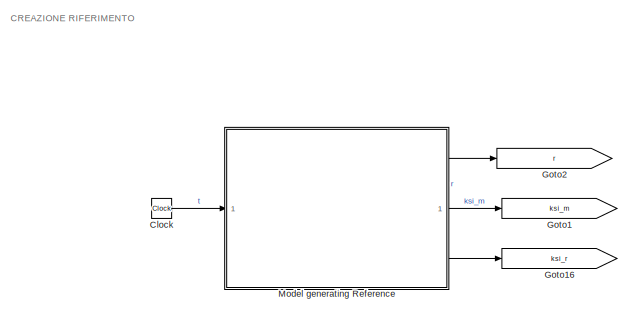
[diagram: root canvas - part 1/7, top left region]
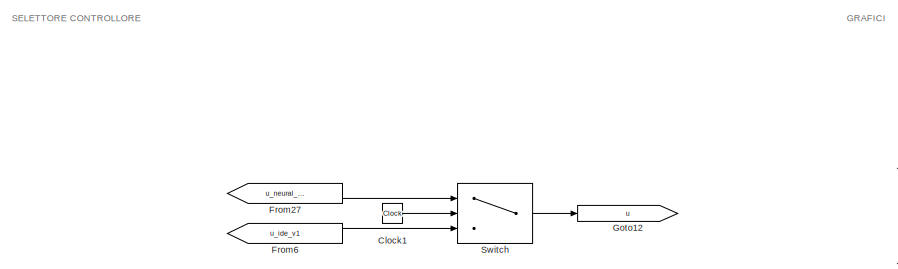
[diagram: root canvas - part 2/7, top center region]
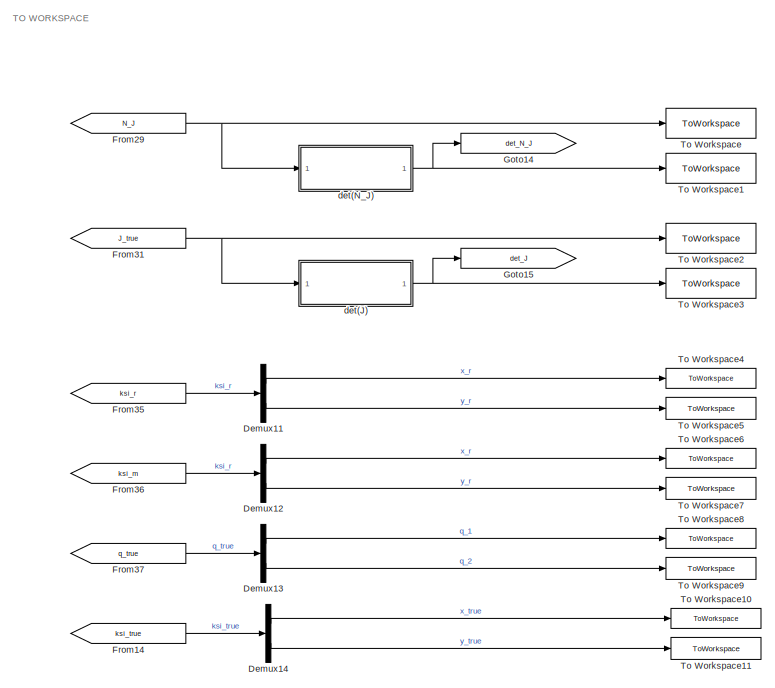
[diagram: root canvas - part 3/7, top right region]
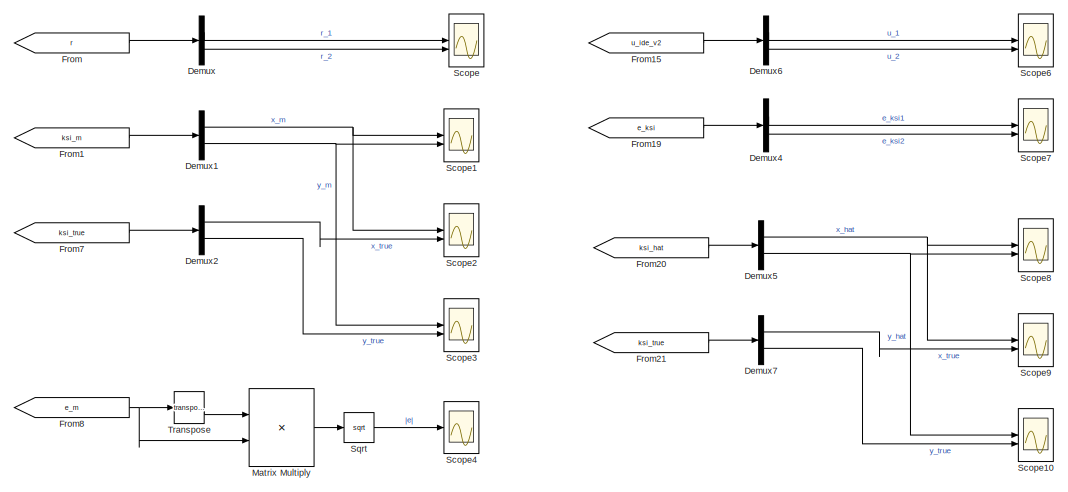
[diagram: root canvas - part 4/7, top center region]
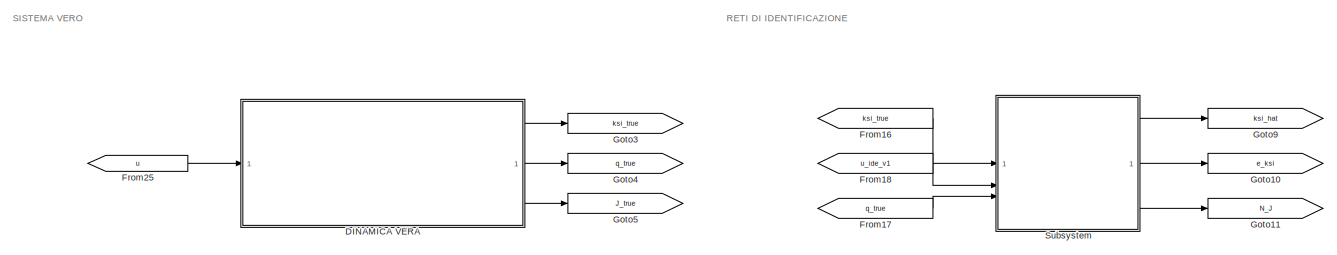
[diagram: root canvas - part 5/7, middle left region]
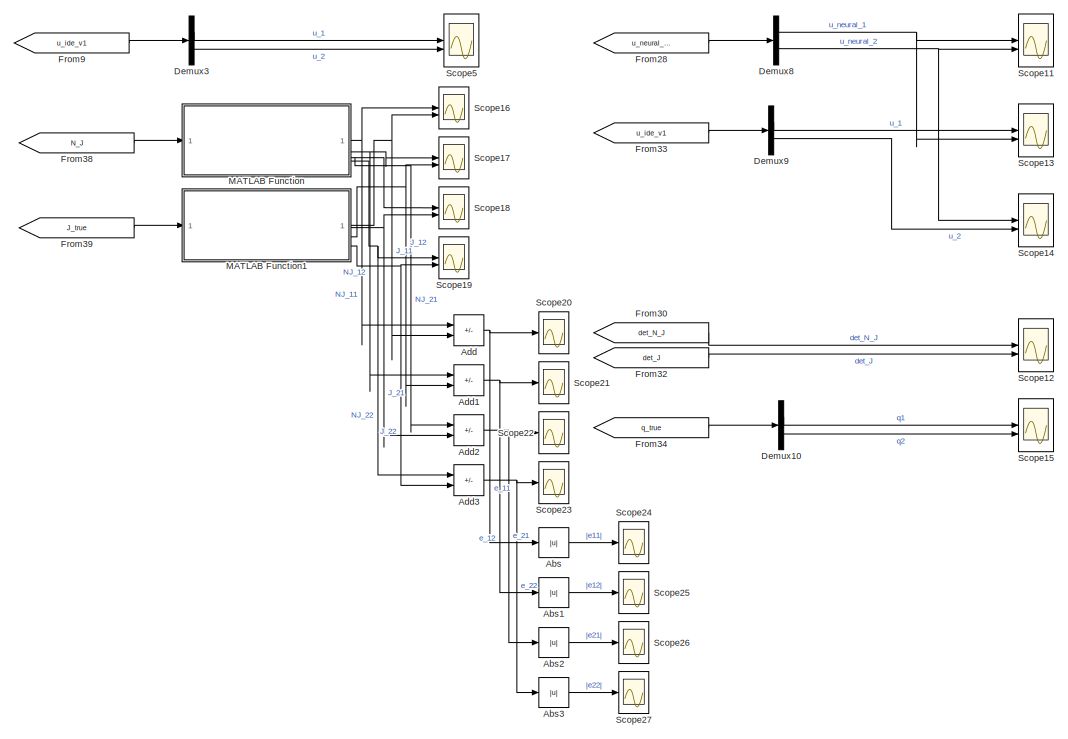
[diagram: root canvas - part 6/7, bottom center region]
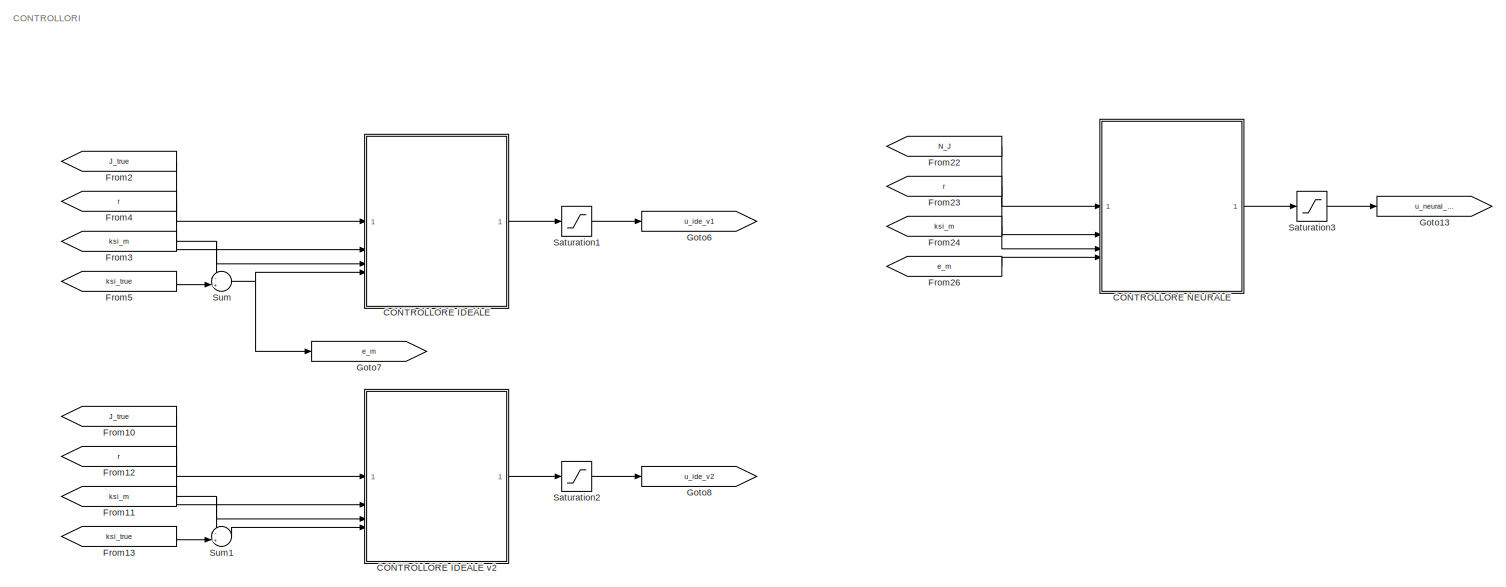
[diagram: root canvas - part 7/7, bottom left region]
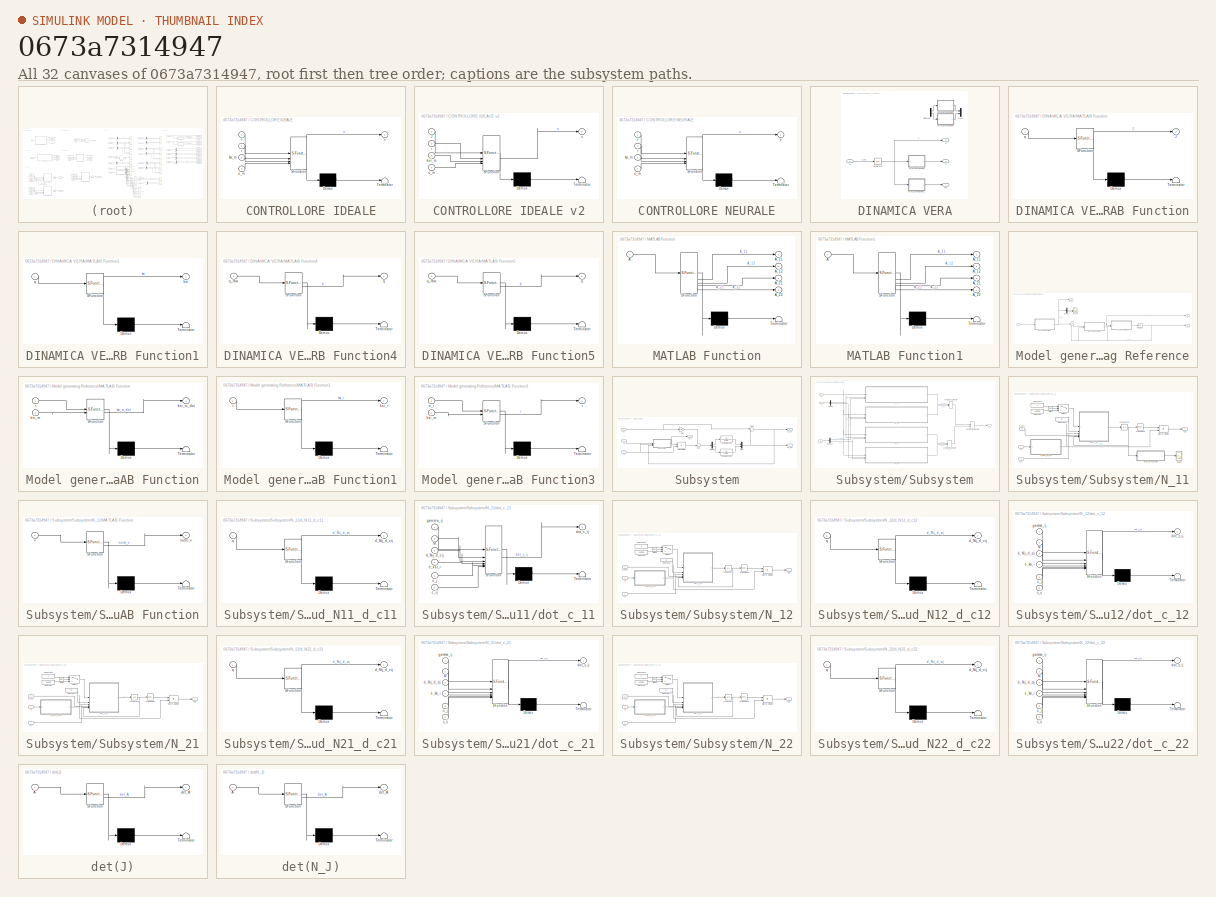
[diagram: thumbnail index - all 32 canvases of the model, root first then tree order]
MODEL slx_0673a7314947
KIND model
CONFIG AbsTol = auto
CONFIG EnableMultiTasking = off
CONFIG FixedStep = ST
CONFIG MaxStep = auto
CONFIG MinStep = auto
CONFIG RelTol = 1e-3
CONFIG SampleTimeConstraint = Unconstrained
CONFIG SolverName = FixedStepAuto
CONFIG StartTime = 0.0
CONFIG StopTime = T_max
BLOCK [Abs] Abs
  SaturateOnIntegerOverflow = off
BLOCK [Abs] Abs1
  SaturateOnIntegerOverflow = off
BLOCK [Abs] Abs2
  SaturateOnIntegerOverflow = off
BLOCK [Abs] Abs3
  SaturateOnIntegerOverflow = off
BLOCK [Sum] Add
  IconShape = rectangular
  Inputs = +-
BLOCK [Sum] Add1
  IconShape = rectangular
  Inputs = +-
BLOCK [Sum] Add2
  IconShape = rectangular
  Inputs = +-
BLOCK [Sum] Add3
  IconShape = rectangular
  Inputs = +-
BLOCK [SubSystem] CONTROLLORE IDEALE
  ErrorFcn = Stateflow.Translate.translate
  PermitHierarchicalResolution = ExplicitOnly
  SFBlockType = MATLAB Function
  TreatAsAtomicUnit = on
BLOCK [SubSystem] CONTROLLORE IDEALE v2
  ErrorFcn = Stateflow.Translate.translate
  PermitHierarchicalResolution = ExplicitOnly
  SFBlockType = MATLAB Function
  TreatAsAtomicUnit = on
BLOCK [Demux] CONTROLLORE IDEALE v2/ Demux 
  Outputs = 1
BLOCK [S-Function] CONTROLLORE IDEALE v2/ SFunction 
  EnableBusSupport = on
  FunctionName = sf_sfun
  Parameters = A_m,B_m,k_m,mu
  PortCounts = [4 2]
  SFcnIsStateOwnerBlock = off
  SFunctionDeploymentMode = off
  Tag = Stateflow S-Function 3
BLOCK [Terminator] CONTROLLORE IDEALE v2/ Terminator 
BLOCK [Inport] CONTROLLORE IDEALE v2/J
BLOCK [Inport] CONTROLLORE IDEALE v2/e_m
  Port = 4
BLOCK [Inport] CONTROLLORE IDEALE v2/ksi_m
  Port = 3
BLOCK [Inport] CONTROLLORE IDEALE v2/r
  Port = 2
BLOCK [Outport] CONTROLLORE IDEALE v2/u
BLOCK [Demux] CONTROLLORE IDEALE/ Demux 
  Outputs = 1
BLOCK [S-Function] CONTROLLORE IDEALE/ SFunction 
  EnableBusSupport = on
  FunctionName = sf_sfun
  Parameters = A_m,B_m,k_m
  PortCounts = [4 2]
  SFcnIsStateOwnerBlock = off
  SFunctionDeploymentMode = off
  Tag = Stateflow S-Function 13
BLOCK [Terminator] CONTROLLORE IDEALE/ Terminator 
BLOCK [Inport] CONTROLLORE IDEALE/J
BLOCK [Inport] CONTROLLORE IDEALE/e_m
  Port = 4
BLOCK [Inport] CONTROLLORE IDEALE/ksi_m
  Port = 3
BLOCK [Inport] CONTROLLORE IDEALE/r
  Port = 2
BLOCK [Outport] CONTROLLORE IDEALE/u
BLOCK [SubSystem] CONTROLLORE NEURALE
  ErrorFcn = Stateflow.Translate.translate
  PermitHierarchicalResolution = ExplicitOnly
  SFBlockType = MATLAB Function
  TreatAsAtomicUnit = on
BLOCK [Demux] CONTROLLORE NEURALE/ Demux 
  Outputs = 1
BLOCK [S-Function] CONTROLLORE NEURALE/ SFunction 
  EnableBusSupport = on
  FunctionName = sf_sfun
  Parameters = A_m,B_m,k_m
  PortCounts = [4 2]
  SFcnIsStateOwnerBlock = off
  SFunctionDeploymentMode = off
  Tag = Stateflow S-Function 18
BLOCK [Terminator] CONTROLLORE NEURALE/ Terminator 
BLOCK [Inport] CONTROLLORE NEURALE/J
BLOCK [Inport] CONTROLLORE NEURALE/e_m
  Port = 4
BLOCK [Inport] CONTROLLORE NEURALE/ksi_m
  Port = 3
BLOCK [Inport] CONTROLLORE NEURALE/r
  Port = 2
BLOCK [Outport] CONTROLLORE NEURALE/u
BLOCK [Clock] Clock
BLOCK [Clock] Clock1
BLOCK [SubSystem] DINAMICA VERA
BLOCK [Demux] DINAMICA VERA/Demux1
  Commented = on
  Outputs = 2
BLOCK [Integrator] DINAMICA VERA/Integrator
  InitialCondition = q_init
BLOCK [Outport] DINAMICA VERA/J
  Port = 3
BLOCK [SubSystem] DINAMICA VERA/MATLAB Function
  ErrorFcn = Stateflow.Translate.translate
  PermitHierarchicalResolution = ExplicitOnly
  SFBlockType = MATLAB Function
  TreatAsAtomicUnit = on
BLOCK [Demux] DINAMICA VERA/MATLAB Function/ Demux 
  Outputs = 1
BLOCK [S-Function] DINAMICA VERA/MATLAB Function/ SFunction 
  EnableBusSupport = on
  FunctionName = sf_sfun
  Parameters = l1,l2
  PortCounts = [1 2]
  SFcnIsStateOwnerBlock = off
  SFunctionDeploymentMode = off
  Tag = Stateflow S-Function 2
BLOCK [Terminator] DINAMICA VERA/MATLAB Function/ Terminator 
BLOCK [Outport] DINAMICA VERA/MATLAB Function/J
BLOCK [Inport] DINAMICA VERA/MATLAB Function/q
BLOCK [SubSystem] DINAMICA VERA/MATLAB Function1
  ErrorFcn = Stateflow.Translate.translate
  PermitHierarchicalResolution = ExplicitOnly
  SFBlockType = MATLAB Function
  TreatAsAtomicUnit = on
BLOCK [Demux] DINAMICA VERA/MATLAB Function1/ Demux 
  Outputs = 1
BLOCK [S-Function] DINAMICA VERA/MATLAB Function1/ SFunction 
  EnableBusSupport = on
  FunctionName = sf_sfun
  Parameters = l1,l2
  PortCounts = [1 2]
  SFcnIsStateOwnerBlock = off
  SFunctionDeploymentMode = off
  Tag = Stateflow S-Function 1
BLOCK [Terminator] DINAMICA VERA/MATLAB Function1/ Terminator 
BLOCK [Outport] DINAMICA VERA/MATLAB Function1/ksi
BLOCK [Inport] DINAMICA VERA/MATLAB Function1/q
BLOCK [SubSystem] DINAMICA VERA/MATLAB Function4
  Commented = on
  ErrorFcn = Stateflow.Translate.translate
  PermitHierarchicalResolution = ExplicitOnly
  SFBlockType = MATLAB Function
  TreatAsAtomicUnit = on
BLOCK [Demux] DINAMICA VERA/MATLAB Function4/ Demux 
  Outputs = 1
BLOCK [S-Function] DINAMICA VERA/MATLAB Function4/ SFunction 
  EnableBusSupport = on
  FunctionName = sf_sfun
  PortCounts = [1 2]
  SFcnIsStateOwnerBlock = off
  SFunctionDeploymentMode = off
  Tag = Stateflow S-Function 5
BLOCK [Terminator] DINAMICA VERA/MATLAB Function4/ Terminator 
BLOCK [Outport] DINAMICA VERA/MATLAB Function4/q
BLOCK [Inport] DINAMICA VERA/MATLAB Function4/q_raw
BLOCK [SubSystem] DINAMICA VERA/MATLAB Function5
  Commented = on
  ErrorFcn = Stateflow.Translate.translate
  PermitHierarchicalResolution = ExplicitOnly
  SFBlockType = MATLAB Function
  TreatAsAtomicUnit = on
BLOCK [Demux] DINAMICA VERA/MATLAB Function5/ Demux 
  Outputs = 1
BLOCK [S-Function] DINAMICA VERA/MATLAB Function5/ SFunction 
  EnableBusSupport = on
  FunctionName = sf_sfun
  PortCounts = [1 2]
  SFcnIsStateOwnerBlock = off
  SFunctionDeploymentMode = off
  Tag = Stateflow S-Function 6
BLOCK [Terminator] DINAMICA VERA/MATLAB Function5/ Terminator 
BLOCK [Outport] DINAMICA VERA/MATLAB Function5/q
BLOCK [Inport] DINAMICA VERA/MATLAB Function5/q_raw
BLOCK [Mux] DINAMICA VERA/Mux1
  Commented = on
  DisplayOption = bar
  Inputs = 2
BLOCK [Outport] DINAMICA VERA/ksi
BLOCK [Outport] DINAMICA VERA/q
  Port = 2
BLOCK [Inport] DINAMICA VERA/u
BLOCK [Demux] Demux
  Outputs = 2
BLOCK [Demux] Demux1
  Outputs = 2
BLOCK [Demux] Demux10
  Outputs = 2
BLOCK [Demux] Demux11
  Outputs = 2
BLOCK [Demux] Demux12
  Outputs = 2
BLOCK [Demux] Demux13
  Outputs = 2
BLOCK [Demux] Demux14
  Outputs = 2
BLOCK [Demux] Demux2
  Outputs = 2
BLOCK [Demux] Demux3
  Outputs = 2
BLOCK [Demux] Demux4
  Outputs = 2
BLOCK [Demux] Demux5
  Outputs = 2
BLOCK [Demux] Demux6
  Outputs = 2
BLOCK [Demux] Demux7
  Outputs = 2
BLOCK [Demux] Demux8
  Outputs = 2
BLOCK [Demux] Demux9
  Outputs = 2
BLOCK [From] From
  GotoTag = r
BLOCK [From] From1
  GotoTag = ksi_m
BLOCK [From] From10
  GotoTag = J_true
BLOCK [From] From11
  GotoTag = ksi_m
BLOCK [From] From12
  GotoTag = r
BLOCK [From] From13
  GotoTag = ksi_true
BLOCK [From] From14
  GotoTag = ksi_true
BLOCK [From] From15
  GotoTag = u_ide_v2
BLOCK [From] From16
  GotoTag = ksi_true
BLOCK [From] From17
  GotoTag = q_true
BLOCK [From] From18
  GotoTag = u_ide_v1
BLOCK [From] From19
  GotoTag = e_ksi
BLOCK [From] From2
  GotoTag = J_true
BLOCK [From] From20
  GotoTag = ksi_hat
BLOCK [From] From21
  GotoTag = ksi_true
BLOCK [From] From22
  GotoTag = N_J
BLOCK [From] From23
  GotoTag = r
BLOCK [From] From24
  GotoTag = ksi_m
BLOCK [From] From25
  GotoTag = u
BLOCK [From] From26
  GotoTag = e_m
BLOCK [From] From27
  GotoTag = u_neural_v1
BLOCK [From] From28
  GotoTag = u_neural_v1
BLOCK [From] From29
  GotoTag = N_J
BLOCK [From] From3
  GotoTag = ksi_m
BLOCK [From] From30
  GotoTag = det_N_J
BLOCK [From] From31
  GotoTag = J_true
BLOCK [From] From32
  GotoTag = det_J
BLOCK [From] From33
  GotoTag = u_ide_v1
BLOCK [From] From34
  GotoTag = q_true
BLOCK [From] From35
  GotoTag = ksi_r
BLOCK [From] From36
  GotoTag = ksi_m
BLOCK [From] From37
  GotoTag = q_true
BLOCK [From] From38
  GotoTag = N_J
BLOCK [From] From39
  GotoTag = J_true
BLOCK [From] From4
  GotoTag = r
BLOCK [From] From5
  GotoTag = ksi_true
BLOCK [From] From6
  GotoTag = u_ide_v1
BLOCK [From] From7
  GotoTag = ksi_true
BLOCK [From] From8
  GotoTag = e_m
BLOCK [From] From9
  GotoTag = u_ide_v1
BLOCK [Goto] Goto1
  GotoTag = ksi_m
BLOCK [Goto] Goto10
  GotoTag = e_ksi
BLOCK [Goto] Goto11
  GotoTag = N_J
BLOCK [Goto] Goto12
  GotoTag = u
BLOCK [Goto] Goto13
  GotoTag = u_neural_v1
BLOCK [Goto] Goto14
  GotoTag = det_N_J
BLOCK [Goto] Goto15
  GotoTag = det_J
BLOCK [Goto] Goto16
  GotoTag = ksi_r
BLOCK [Goto] Goto2
  GotoTag = r
BLOCK [Goto] Goto3
  GotoTag = ksi_true
BLOCK [Goto] Goto4
  GotoTag = q_true
BLOCK [Goto] Goto5
  GotoTag = J_true
BLOCK [Goto] Goto6
  GotoTag = u_ide_v1
BLOCK [Goto] Goto7
  GotoTag = e_m
BLOCK [Goto] Goto8
  GotoTag = u_ide_v2
BLOCK [Goto] Goto9
  GotoTag = ksi_hat
BLOCK [SubSystem] MATLAB Function
  ErrorFcn = Stateflow.Translate.translate
  PermitHierarchicalResolution = ExplicitOnly
  SFBlockType = MATLAB Function
  TreatAsAtomicUnit = on
BLOCK [Demux] MATLAB Function/ Demux 
  Outputs = 1
BLOCK [S-Function] MATLAB Function/ SFunction 
  EnableBusSupport = on
  FunctionName = sf_sfun
  PortCounts = [1 5]
  SFcnIsStateOwnerBlock = off
  SFunctionDeploymentMode = off
  Tag = Stateflow S-Function 22
BLOCK [Terminator] MATLAB Function/ Terminator 
BLOCK [Inport] MATLAB Function/A
BLOCK [Outport] MATLAB Function/A_11
BLOCK [Outport] MATLAB Function/A_12
  Port = 2
BLOCK [Outport] MATLAB Function/A_21
  Port = 3
BLOCK [Outport] MATLAB Function/A_22
  Port = 4
BLOCK [SubSystem] MATLAB Function1
  ErrorFcn = Stateflow.Translate.translate
  PermitHierarchicalResolution = ExplicitOnly
  SFBlockType = MATLAB Function
  TreatAsAtomicUnit = on
BLOCK [Demux] MATLAB Function1/ Demux 
  Outputs = 1
BLOCK [S-Function] MATLAB Function1/ SFunction 
  EnableBusSupport = on
  FunctionName = sf_sfun
  PortCounts = [1 5]
  SFcnIsStateOwnerBlock = off
  SFunctionDeploymentMode = off
  Tag = Stateflow S-Function 23
BLOCK [Terminator] MATLAB Function1/ Terminator 
BLOCK [Inport] MATLAB Function1/A
BLOCK [Outport] MATLAB Function1/A_11
BLOCK [Outport] MATLAB Function1/A_12
  Port = 2
BLOCK [Outport] MATLAB Function1/A_21
  Port = 3
BLOCK [Outport] MATLAB Function1/A_22
  Port = 4
BLOCK [Product] Matrix Multiply
  Multiplication = Matrix(*)
BLOCK [SubSystem] Model generating Reference
BLOCK [Demux] Model generating Reference/Demux
  Outputs = 2
BLOCK [Integrator] Model generating Reference/Integrator
  InitialCondition = ksi_m_init
BLOCK [SubSystem] Model generating Reference/MATLAB Function
  ErrorFcn = Stateflow.Translate.translate
  PermitHierarchicalResolution = ExplicitOnly
  SFBlockType = MATLAB Function
  TreatAsAtomicUnit = on
BLOCK [Demux] Model generating Reference/MATLAB Function/ Demux 
  Outputs = 1
BLOCK [S-Function] Model generating Reference/MATLAB Function/ SFunction 
  EnableBusSupport = on
  FunctionName = sf_sfun
  Parameters = A_m,B_m
  PortCounts = [2 2]
  SFcnIsStateOwnerBlock = off
  SFunctionDeploymentMode = off
  Tag = Stateflow S-Function 11
BLOCK [Terminator] Model generating Reference/MATLAB Function/ Terminator 
BLOCK [Inport] Model generating Reference/MATLAB Function/ksi_m
  Port = 2
BLOCK [Outport] Model generating Reference/MATLAB Function/ksi_m_dot
BLOCK [Inport] Model generating Reference/MATLAB Function/r
BLOCK [SubSystem] Model generating Reference/MATLAB Function1
  ErrorFcn = Stateflow.Translate.translate
  PermitHierarchicalResolution = ExplicitOnly
  SFBlockType = MATLAB Function
  TreatAsAtomicUnit = on
BLOCK [Demux] Model generating Reference/MATLAB Function1/ Demux 
  Outputs = 1
BLOCK [S-Function] Model generating Reference/MATLAB Function1/ SFunction 
  EnableBusSupport = on
  FunctionName = sf_sfun
  Parameters = l1,l2,omega_r_1,omega_r_2
  PortCounts = [1 2]
  SFcnIsStateOwnerBlock = off
  SFunctionDeploymentMode = off
  Tag = Stateflow S-Function 9
BLOCK [Terminator] Model generating Reference/MATLAB Function1/ Terminator 
BLOCK [Outport] Model generating Reference/MATLAB Function1/ksi_r
BLOCK [Inport] Model generating Reference/MATLAB Function1/t
BLOCK [SubSystem] Model generating Reference/MATLAB Function3
  ErrorFcn = Stateflow.Translate.translate
  PermitHierarchicalResolution = ExplicitOnly
  SFBlockType = MATLAB Function
  TreatAsAtomicUnit = on
BLOCK [Demux] Model generating Reference/MATLAB Function3/ Demux 
  Outputs = 1
BLOCK [S-Function] Model generating Reference/MATLAB Function3/ SFunction 
  EnableBusSupport = on
  FunctionName = sf_sfun
  Parameters = A_m,B_m,k_r
  PortCounts = [2 2]
  SFcnIsStateOwnerBlock = off
  SFunctionDeploymentMode = off
  Tag = Stateflow S-Function 12
BLOCK [Terminator] Model generating Reference/MATLAB Function3/ Terminator 
BLOCK [Inport] Model generating Reference/MATLAB Function3/e_r
BLOCK [Inport] Model generating Reference/MATLAB Function3/ksi_m
  Port = 2
BLOCK [Outport] Model generating Reference/MATLAB Function3/r
BLOCK [Scope] Model generating Reference/Scope
  Floating = off
  NumInputPorts = 2
  ScopeSpecificationString = Simulink.scopes.TimeScopeBlockCfg('CurrentConfiguration', extmgr.ConfigurationSet(extmgr.Configuration('Core','General UI',true),extmgr.Configuration('Core','Source UI',true),extmgr.Configuration('Sources','WiredSimulink',true,'DataLoggingVariableName','ScopeData1'),extmgr.Configuration('Visuals','Time Domain',true,'SerializedDisplays',{struct('MinYLimReal','-3.20119','MaxYLimReal','3.83103','YLab...<+1493ch>
BLOCK [Sum] Model generating Reference/Sum
  Inputs = |-+
BLOCK [Outport] Model generating Reference/ksi_m
  Port = 2
BLOCK [Outport] Model generating Reference/ksi_r
  Port = 3
BLOCK [Outport] Model generating Reference/r
BLOCK [Inport] Model generating Reference/t
BLOCK [Saturate] Saturation1
  LowerLimit = -u_sat
  UpperLimit = u_sat
BLOCK [Saturate] Saturation2
  LowerLimit = -u_sat
  UpperLimit = u_sat
BLOCK [Saturate] Saturation3
  LowerLimit = -u_sat
  UpperLimit = u_sat
BLOCK [Scope] Scope
  Floating = off
  NumInputPorts = 2
  ScopeSpecificationString = Simulink.scopes.TimeScopeBlockCfg('CurrentConfiguration', extmgr.ConfigurationSet(extmgr.Configuration('Core','General UI',true),extmgr.Configuration('Core','Source UI',true),extmgr.Configuration('Sources','WiredSimulink',true,'DataLoggingVariableName','ScopeData4'),extmgr.Configuration('Visuals','Time Domain',true,'SerializedDisplays',{struct('MinYLimReal','-3.19789','MaxYLimReal','3.82733','YLab...<+1498ch>
BLOCK [Scope] Scope1
  Floating = off
  NumInputPorts = 2
  ScopeSpecificationString = Simulink.scopes.TimeScopeBlockCfg('CurrentConfiguration', extmgr.ConfigurationSet(extmgr.Configuration('Core','General UI',true),extmgr.Configuration('Core','Source UI',true),extmgr.Configuration('Sources','WiredSimulink',true),extmgr.Configuration('Visuals','Time Domain',true,'SerializedDisplays',{struct('MinYLimReal','-6.18528','MaxYLimReal','6.18697','YLabelReal','','MinYLimMag','0.00000','MaxY...<+1500ch>
BLOCK [Scope] Scope10
  Floating = off
  NumInputPorts = 2
  ScopeSpecificationString = Simulink.scopes.TimeScopeBlockCfg('CurrentConfiguration', extmgr.ConfigurationSet(extmgr.Configuration('Core','General UI',true),extmgr.Configuration('Core','Source UI',true),extmgr.Configuration('Sources','WiredSimulink',true,'DataLoggingVariableName','ScopeData9'),extmgr.Configuration('Visuals','Time Domain',true,'SerializedDisplays',{struct('MinYLimReal','-4.52749','MaxYLimReal','5.40765','YLab...<+1544ch>
BLOCK [Scope] Scope11
  Floating = off
  NumInputPorts = 2
  ScopeSpecificationString = Simulink.scopes.TimeScopeBlockCfg('CurrentConfiguration', extmgr.ConfigurationSet(extmgr.Configuration('Core','General UI',true),extmgr.Configuration('Core','Source UI',true),extmgr.Configuration('Sources','WiredSimulink',true,'DataLoggingVariableName','ScopeData12'),extmgr.Configuration('Visuals','Time Domain',true,'SerializedDisplays',{struct('MinYLimReal','-6.25','MaxYLimReal','6.25','YLabelRea...<+1536ch>
BLOCK [Scope] Scope12
  Floating = off
  NumInputPorts = 2
  ScopeSpecificationString = Simulink.scopes.TimeScopeBlockCfg('CurrentConfiguration', extmgr.ConfigurationSet(extmgr.Configuration('Core','General UI',true),extmgr.Configuration('Core','Source UI',true),extmgr.Configuration('Sources','WiredSimulink',true,'DataLoggingVariableName','ScopeData13'),extmgr.Configuration('Visuals','Time Domain',true,'SerializedDisplays',{struct('MinYLimReal','-78.81548','MaxYLimReal','67.56821','Y...<+1552ch>
BLOCK [Scope] Scope13
  Floating = off
  NumInputPorts = 2
  ScopeSpecificationString = Simulink.scopes.TimeScopeBlockCfg('CurrentConfiguration', extmgr.ConfigurationSet(extmgr.Configuration('Core','General UI',true),extmgr.Configuration('Core','Source UI',true),extmgr.Configuration('Sources','WiredSimulink',true,'DataLoggingVariableName','ScopeData3'),extmgr.Configuration('Visuals','Time Domain',true,'SerializedDisplays',{struct('MinYLimReal','-4.99473','MaxYLimReal','5.82516','YLab...<+1534ch>
BLOCK [Scope] Scope14
  Floating = off
  NumInputPorts = 2
  ScopeSpecificationString = Simulink.scopes.TimeScopeBlockCfg('CurrentConfiguration', extmgr.ConfigurationSet(extmgr.Configuration('Core','General UI',true),extmgr.Configuration('Core','Source UI',true),extmgr.Configuration('Sources','WiredSimulink',true,'DataLoggingVariableName','ScopeData4'),extmgr.Configuration('Visuals','Time Domain',true,'SerializedDisplays',{struct('MinYLimReal','-0.88516','MaxYLimReal','0.83898','YLab...<+1546ch>
BLOCK [Scope] Scope15
  Floating = off
  NumInputPorts = 2
  ScopeSpecificationString = Simulink.scopes.TimeScopeBlockCfg('CurrentConfiguration', extmgr.ConfigurationSet(extmgr.Configuration('Core','General UI',true),extmgr.Configuration('Core','Source UI',true),extmgr.Configuration('Sources','WiredSimulink',true,'DataLoggingVariableName','ScopeData5'),extmgr.Configuration('Visuals','Time Domain',true,'SerializedDisplays',{struct('MinYLimReal','-1.81394','MaxYLimReal','8.46284','YLab...<+1590ch>
BLOCK [Scope] Scope16
  Floating = off
  NumInputPorts = 2
  ScopeSpecificationString = Simulink.scopes.TimeScopeBlockCfg('CurrentConfiguration', extmgr.ConfigurationSet(extmgr.Configuration('Core','General UI',true),extmgr.Configuration('Core','Source UI',true),extmgr.Configuration('Sources','WiredSimulink',true,'DataLoggingVariableName','ScopeData1'),extmgr.Configuration('Visuals','Time Domain',true,'SerializedDisplays',{struct('MinYLimReal','-11.72465','MaxYLimReal','11.44807','YL...<+1603ch>
BLOCK [Scope] Scope17
  Floating = off
  NumInputPorts = 2
  ScopeSpecificationString = Simulink.scopes.TimeScopeBlockCfg('CurrentConfiguration', extmgr.ConfigurationSet(extmgr.Configuration('Core','General UI',true),extmgr.Configuration('Core','Source UI',true),extmgr.Configuration('Sources','WiredSimulink',true,'DataLoggingVariableName','ScopeData2'),extmgr.Configuration('Visuals','Time Domain',true,'SerializedDisplays',{struct('MinYLimReal','-11.86132','MaxYLimReal','12.05903','YL...<+1616ch>
BLOCK [Scope] Scope18
  Floating = off
  NumInputPorts = 2
  ScopeSpecificationString = Simulink.scopes.TimeScopeBlockCfg('CurrentConfiguration', extmgr.ConfigurationSet(extmgr.Configuration('Core','General UI',true),extmgr.Configuration('Core','Source UI',true),extmgr.Configuration('Sources','WiredSimulink',true,'DataLoggingVariableName','ScopeData3'),extmgr.Configuration('Visuals','Time Domain',true,'SerializedDisplays',{struct('MinYLimReal','-11.70718','MaxYLimReal','12.29293','YL...<+1603ch>
BLOCK [Scope] Scope19
  Floating = off
  NumInputPorts = 2
  ScopeSpecificationString = Simulink.scopes.TimeScopeBlockCfg('CurrentConfiguration', extmgr.ConfigurationSet(extmgr.Configuration('Core','General UI',true),extmgr.Configuration('Core','Source UI',true),extmgr.Configuration('Sources','WiredSimulink',true,'DataLoggingVariableName','ScopeData4'),extmgr.Configuration('Visuals','Time Domain',true,'SerializedDisplays',{struct('MinYLimReal','-11.33927','MaxYLimReal','11.08798','YL...<+1567ch>
BLOCK [Scope] Scope2
  Floating = off
  NumInputPorts = 2
  ScopeSpecificationString = Simulink.scopes.TimeScopeBlockCfg('CurrentConfiguration', extmgr.ConfigurationSet(extmgr.Configuration('Core','General UI',true),extmgr.Configuration('Core','Source UI',true),extmgr.Configuration('Sources','WiredSimulink',true,'DataLoggingVariableName','ScopeData2'),extmgr.Configuration('Visuals','Time Domain',true,'SerializedDisplays',{struct('MinYLimReal','-8.07832','MaxYLimReal','8.67506','YLab...<+1542ch>
BLOCK [Scope] Scope20
  Floating = off
  NumInputPorts = 1
  ScopeSpecificationString = Simulink.scopes.TimeScopeBlockCfg('CurrentConfiguration', extmgr.ConfigurationSet(extmgr.Configuration('Core','General UI',true),extmgr.Configuration('Core','Source UI',true),extmgr.Configuration('Sources','WiredSimulink',true,'DataLoggingVariableName','ScopeData5'),extmgr.Configuration('Visuals','Time Domain',true,'SerializedDisplays',{struct('MinYLimReal','-11.72465','MaxYLimReal','11.44807','YL...<+1595ch>
BLOCK [Scope] Scope21
  Floating = off
  NumInputPorts = 1
  ScopeSpecificationString = Simulink.scopes.TimeScopeBlockCfg('CurrentConfiguration', extmgr.ConfigurationSet(extmgr.Configuration('Core','General UI',true),extmgr.Configuration('Core','Source UI',true),extmgr.Configuration('Sources','WiredSimulink',true,'DataLoggingVariableName','ScopeData6'),extmgr.Configuration('Visuals','Time Domain',true,'SerializedDisplays',{struct('MinYLimReal','-11.86132','MaxYLimReal','12.05903','YL...<+1608ch>
BLOCK [Scope] Scope22
  Floating = off
  NumInputPorts = 1
  ScopeSpecificationString = Simulink.scopes.TimeScopeBlockCfg('CurrentConfiguration', extmgr.ConfigurationSet(extmgr.Configuration('Core','General UI',true),extmgr.Configuration('Core','Source UI',true),extmgr.Configuration('Sources','WiredSimulink',true,'DataLoggingVariableName','ScopeData7'),extmgr.Configuration('Visuals','Time Domain',true,'SerializedDisplays',{struct('MinYLimReal','-11.70718','MaxYLimReal','12.29293','YL...<+1595ch>
BLOCK [Scope] Scope23
  Floating = off
  NumInputPorts = 1
  ScopeSpecificationString = Simulink.scopes.TimeScopeBlockCfg('CurrentConfiguration', extmgr.ConfigurationSet(extmgr.Configuration('Core','General UI',true),extmgr.Configuration('Core','Source UI',true),extmgr.Configuration('Sources','WiredSimulink',true,'DataLoggingVariableName','ScopeData8'),extmgr.Configuration('Visuals','Time Domain',true,'SerializedDisplays',{struct('MinYLimReal','-11.33927','MaxYLimReal','11.08798','YL...<+1557ch>
BLOCK [Scope] Scope24
  Floating = off
  NumInputPorts = 1
  ScopeSpecificationString = Simulink.scopes.TimeScopeBlockCfg('CurrentConfiguration', extmgr.ConfigurationSet(extmgr.Configuration('Core','General UI',true),extmgr.Configuration('Core','Source UI',true),extmgr.Configuration('Sources','WiredSimulink',true,'DataLoggingVariableName','ScopeData9'),extmgr.Configuration('Visuals','Time Domain',true,'SerializedDisplays',{struct('MinYLimReal','-0.29057','MaxYLimReal','10.41633','YLa...<+1594ch>
BLOCK [Scope] Scope25
  Floating = off
  NumInputPorts = 1
  ScopeSpecificationString = Simulink.scopes.TimeScopeBlockCfg('CurrentConfiguration', extmgr.ConfigurationSet(extmgr.Configuration('Core','General UI',true),extmgr.Configuration('Core','Source UI',true),extmgr.Configuration('Sources','WiredSimulink',true,'DataLoggingVariableName','ScopeData10'),extmgr.Configuration('Visuals','Time Domain',true,'SerializedDisplays',{struct('MinYLimReal','-0.33789','MaxYLimReal','10.21125','YL...<+1608ch>
BLOCK [Scope] Scope26
  Floating = off
  NumInputPorts = 1
  ScopeSpecificationString = Simulink.scopes.TimeScopeBlockCfg('CurrentConfiguration', extmgr.ConfigurationSet(extmgr.Configuration('Core','General UI',true),extmgr.Configuration('Core','Source UI',true),extmgr.Configuration('Sources','WiredSimulink',true,'DataLoggingVariableName','ScopeData11'),extmgr.Configuration('Visuals','Time Domain',true,'SerializedDisplays',{struct('MinYLimReal','-0.21275','MaxYLimReal','10.23674','YL...<+1595ch>
BLOCK [Scope] Scope27
  Floating = off
  NumInputPorts = 1
  ScopeSpecificationString = Simulink.scopes.TimeScopeBlockCfg('CurrentConfiguration', extmgr.ConfigurationSet(extmgr.Configuration('Core','General UI',true),extmgr.Configuration('Core','Source UI',true),extmgr.Configuration('Sources','WiredSimulink',true,'DataLoggingVariableName','ScopeData12'),extmgr.Configuration('Visuals','Time Domain',true,'SerializedDisplays',{struct('MinYLimReal','-0.28403','MaxYLimReal','10.2327','YLa...<+1553ch>
BLOCK [Scope] Scope3
  Floating = off
  NumInputPorts = 2
  ScopeSpecificationString = Simulink.scopes.TimeScopeBlockCfg('CurrentConfiguration', extmgr.ConfigurationSet(extmgr.Configuration('Core','General UI',true),extmgr.Configuration('Core','Source UI',true),extmgr.Configuration('Sources','WiredSimulink',true,'DataLoggingVariableName','ScopeData3'),extmgr.Configuration('Visuals','Time Domain',true,'SerializedDisplays',{struct('MinYLimReal','-6.18528','MaxYLimReal','6.18697','YLab...<+1542ch>
BLOCK [Scope] Scope4
  Floating = off
  NumInputPorts = 1
  ScopeSpecificationString = Simulink.scopes.TimeScopeBlockCfg('CurrentConfiguration', extmgr.ConfigurationSet(extmgr.Configuration('Core','General UI',true),extmgr.Configuration('Core','Source UI',true),extmgr.Configuration('Sources','WiredSimulink',true,'DataLoggingVariableName','ScopeData5'),extmgr.Configuration('Visuals','Time Domain',true,'SerializedDisplays',{struct('MinYLimReal','-0.38705','MaxYLimReal','3.48341','YLab...<+1491ch>
BLOCK [Scope] Scope5
  Floating = off
  NumInputPorts = 2
  ScopeSpecificationString = Simulink.scopes.TimeScopeBlockCfg('CurrentConfiguration', extmgr.ConfigurationSet(extmgr.Configuration('Core','General UI',true),extmgr.Configuration('Core','Source UI',true),extmgr.Configuration('Sources','WiredSimulink',true,'DataLoggingVariableName','ScopeData6'),extmgr.Configuration('Visuals','Time Domain',true,'SerializedDisplays',{struct('MinYLimReal','-6.25','MaxYLimReal','6.25','YLabelReal...<+1521ch>
BLOCK [Scope] Scope6
  Floating = off
  NumInputPorts = 2
  ScopeSpecificationString = Simulink.scopes.TimeScopeBlockCfg('CurrentConfiguration', extmgr.ConfigurationSet(extmgr.Configuration('Core','General UI',true),extmgr.Configuration('Core','Source UI',true),extmgr.Configuration('Sources','WiredSimulink',true,'DataLoggingVariableName','ScopeData7'),extmgr.Configuration('Visuals','Time Domain',true,'SerializedDisplays',{struct('MinYLimReal','-8784.63764','MaxYLimReal','5530.21133'...<+1561ch>
BLOCK [Scope] Scope7
  Floating = off
  NumInputPorts = 2
  ScopeSpecificationString = Simulink.scopes.TimeScopeBlockCfg('CurrentConfiguration', extmgr.ConfigurationSet(extmgr.Configuration('Core','General UI',true),extmgr.Configuration('Core','Source UI',true),extmgr.Configuration('Sources','WiredSimulink',true,'DataLoggingVariableName','ScopeData8'),extmgr.Configuration('Visuals','Time Domain',true,'SerializedDisplays',{struct('MinYLimReal','-6.83606','MaxYLimReal','3.24028','YLab...<+2278ch>
BLOCK [Scope] Scope8
  Floating = off
  NumInputPorts = 2
  ScopeSpecificationString = Simulink.scopes.TimeScopeBlockCfg('CurrentConfiguration', extmgr.ConfigurationSet(extmgr.Configuration('Core','General UI',true),extmgr.Configuration('Core','Source UI',true),extmgr.Configuration('Sources','WiredSimulink',true,'DataLoggingVariableName','ScopeData10'),extmgr.Configuration('Visuals','Time Domain',true,'SerializedDisplays',{struct('MinYLimReal','-6.87228','MaxYLimReal','12.06998','YL...<+1548ch>
BLOCK [Scope] Scope9
  Floating = off
  NumInputPorts = 2
  ScopeSpecificationString = Simulink.scopes.TimeScopeBlockCfg('CurrentConfiguration', extmgr.ConfigurationSet(extmgr.Configuration('Core','General UI',true),extmgr.Configuration('Core','Source UI',true),extmgr.Configuration('Sources','WiredSimulink',true,'DataLoggingVariableName','ScopeData11'),extmgr.Configuration('Visuals','Time Domain',true,'SerializedDisplays',{struct('MinYLimReal','-6.87228','MaxYLimReal','12.06998','YL...<+1549ch>
BLOCK [Sqrt] Sqrt
BLOCK [SubSystem] Subsystem
BLOCK [Demux] Subsystem/Demux
  Outputs = 2
BLOCK [Gain] Subsystem/Gain
  Gain = alfa
BLOCK [Product] Subsystem/Matrix Multiply
  Multiplication = Matrix(*)
BLOCK [Mux] Subsystem/Mux
  DisplayOption = bar
  Inputs = 2
BLOCK [Outport] Subsystem/N_J
  Port = 3
BLOCK [SubSystem] Subsystem/Subsystem
BLOCK [Demux] Subsystem/Subsystem/Demux
  Outputs = 2
BLOCK [Demux] Subsystem/Subsystem/Demux1
  Outputs = 2
BLOCK [SubSystem] Subsystem/Subsystem/N_11
BLOCK [Clock] Subsystem/Subsystem/N_11/Clock
BLOCK [Constant] Subsystem/Subsystem/N_11/Constant
  Value = gamma
BLOCK [Constant] Subsystem/Subsystem/N_11/Constant1
  Value = M
BLOCK [Constant] Subsystem/Subsystem/N_11/Constant2
  Value = 0
BLOCK [Integrator] Subsystem/Subsystem/N_11/Integrator
  InitialCondition = c_11_init
BLOCK [SubSystem] Subsystem/Subsystem/N_11/MATLAB Function
  ErrorFcn = Stateflow.Translate.translate
  PermitHierarchicalResolution = ExplicitOnly
  SFBlockType = MATLAB Function
  TreatAsAtomicUnit = on
BLOCK [Demux] Subsystem/Subsystem/N_11/MATLAB Function/ Demux 
  Outputs = 1
BLOCK [S-Function] Subsystem/Subsystem/N_11/MATLAB Function/ SFunction 
  EnableBusSupport = on
  FunctionName = sf_sfun
  PortCounts = [1 2]
  SFcnIsStateOwnerBlock = off
  SFunctionDeploymentMode = off
  Tag = Stateflow S-Function 21
BLOCK [Terminator] Subsystem/Subsystem/N_11/MATLAB Function/ Terminator 
BLOCK [Outport] Subsystem/Subsystem/N_11/MATLAB Function/norm_v
BLOCK [Inport] Subsystem/Subsystem/N_11/MATLAB Function/v
BLOCK [Product] Subsystem/Subsystem/N_11/Matrix Multiply
  Multiplication = Matrix(*)
BLOCK [Outport] Subsystem/Subsystem/N_11/N_ij
BLOCK [Scope] Subsystem/Subsystem/N_11/Scope
  Floating = off
  NumInputPorts = 1
  ScopeSpecificationString = Simulink.scopes.TimeScopeBlockCfg('CurrentConfiguration', extmgr.ConfigurationSet(extmgr.Configuration('Core','General UI',true),extmgr.Configuration('Core','Source UI',true),extmgr.Configuration('Sources','WiredSimulink',true,'DataLoggingVariableName','ScopeData2'),extmgr.Configuration('Visuals','Time Domain',true,'SerializedDisplays',{struct('MinYLimReal','-2.81267','MaxYLimReal','25.55796','YLa...<+1507ch>
BLOCK [Switch] Subsystem/Subsystem/N_11/Switch
  Criteria = u2 > Threshold
  InputSameDT = off
  SaturateOnIntegerOverflow = off
  Threshold = T_max+1
BLOCK [Math] Subsystem/Subsystem/N_11/Transpose
  Operator = transpose
BLOCK [SubSystem] Subsystem/Subsystem/N_11/d_N11_d_c11
  ErrorFcn = Stateflow.Translate.translate
  PermitHierarchicalResolution = ExplicitOnly
  SFBlockType = MATLAB Function
  TreatAsAtomicUnit = on
BLOCK [Demux] Subsystem/Subsystem/N_11/d_N11_d_c11/ Demux 
  Outputs = 1
BLOCK [S-Function] Subsystem/Subsystem/N_11/d_N11_d_c11/ SFunction 
  EnableBusSupport = on
  FunctionName = sf_sfun
  Parameters = VAR_inv,delta_q1,delta_q2,n_q1,n_q2,shift1,shift2
  PortCounts = [1 2]
  SFcnIsStateOwnerBlock = off
  SFunctionDeploymentMode = off
  Tag = Stateflow S-Function 7
BLOCK [Terminator] Subsystem/Subsystem/N_11/d_N11_d_c11/ Terminator 
BLOCK [Outport] Subsystem/Subsystem/N_11/d_N11_d_c11/d_Nij_d_cij
BLOCK [Inport] Subsystem/Subsystem/N_11/d_N11_d_c11/q
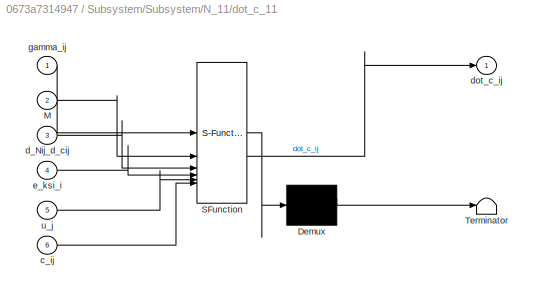
BLOCK [SubSystem] Subsystem/Subsystem/N_11/dot_c_11
  ErrorFcn = Stateflow.Translate.translate
  PermitHierarchicalResolution = ExplicitOnly
  SFBlockType = MATLAB Function
  TreatAsAtomicUnit = on
BLOCK [Demux] Subsystem/Subsystem/N_11/dot_c_11/ Demux 
  Outputs = 1
BLOCK [S-Function] Subsystem/Subsystem/N_11/dot_c_11/ SFunction 
  EnableBusSupport = on
  FunctionName = sf_sfun
  PortCounts = [6 2]
  SFcnIsStateOwnerBlock = off
  SFunctionDeploymentMode = off
  Tag = Stateflow S-Function 4
BLOCK [Terminator] Subsystem/Subsystem/N_11/dot_c_11/ Terminator 
BLOCK [Inport] Subsystem/Subsystem/N_11/dot_c_11/M
  Port = 2
BLOCK [Inport] Subsystem/Subsystem/N_11/dot_c_11/c_ij
  Port = 6
BLOCK [Inport] Subsystem/Subsystem/N_11/dot_c_11/d_Nij_d_cij
  Port = 3
BLOCK [Outport] Subsystem/Subsystem/N_11/dot_c_11/dot_c_ij
BLOCK [Inport] Subsystem/Subsystem/N_11/dot_c_11/e_ksi_i
  Port = 4
BLOCK [Inport] Subsystem/Subsystem/N_11/dot_c_11/gamma_ij
BLOCK [Inport] Subsystem/Subsystem/N_11/dot_c_11/u_j
  Port = 5
BLOCK [Inport] Subsystem/Subsystem/N_11/e_ksi_i
  Port = 3
BLOCK [Inport] Subsystem/Subsystem/N_11/q
BLOCK [Inport] Subsystem/Subsystem/N_11/u_j
  Port = 2
BLOCK [SubSystem] Subsystem/Subsystem/N_12
BLOCK [Clock] Subsystem/Subsystem/N_12/Clock
BLOCK [Constant] Subsystem/Subsystem/N_12/Constant
  Value = gamma
BLOCK [Constant] Subsystem/Subsystem/N_12/Constant1
  Value = M
BLOCK [Constant] Subsystem/Subsystem/N_12/Constant2
  Value = 0
BLOCK [Integrator] Subsystem/Subsystem/N_12/Integrator
  InitialCondition = c_12_init
BLOCK [Product] Subsystem/Subsystem/N_12/Matrix Multiply
  Multiplication = Matrix(*)
BLOCK [Outport] Subsystem/Subsystem/N_12/N_ij
BLOCK [Switch] Subsystem/Subsystem/N_12/Switch
  Criteria = u2 > Threshold
  InputSameDT = off
  SaturateOnIntegerOverflow = off
  Threshold = T_max+1
BLOCK [Math] Subsystem/Subsystem/N_12/Transpose
  Operator = transpose
BLOCK [SubSystem] Subsystem/Subsystem/N_12/d_N12_d_c12
  ErrorFcn = Stateflow.Translate.translate
  PermitHierarchicalResolution = ExplicitOnly
  SFBlockType = MATLAB Function
  TreatAsAtomicUnit = on
BLOCK [Demux] Subsystem/Subsystem/N_12/d_N12_d_c12/ Demux 
  Outputs = 1
BLOCK [S-Function] Subsystem/Subsystem/N_12/d_N12_d_c12/ SFunction 
  EnableBusSupport = on
  FunctionName = sf_sfun
  Parameters = VAR_inv,delta_q1,delta_q2,n_q1,n_q2,shift1,shift2
  PortCounts = [1 2]
  SFcnIsStateOwnerBlock = off
  SFunctionDeploymentMode = off
  Tag = Stateflow S-Function 8
BLOCK [Terminator] Subsystem/Subsystem/N_12/d_N12_d_c12/ Terminator 
BLOCK [Outport] Subsystem/Subsystem/N_12/d_N12_d_c12/d_Nij_d_cij
BLOCK [Inport] Subsystem/Subsystem/N_12/d_N12_d_c12/q
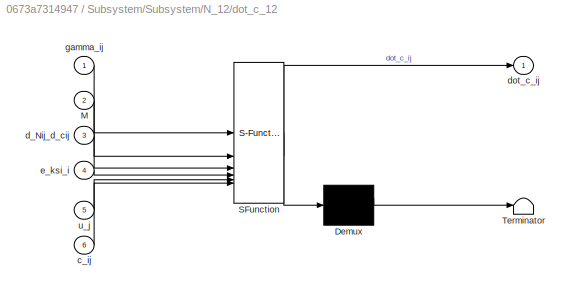
BLOCK [SubSystem] Subsystem/Subsystem/N_12/dot_c_12
  ErrorFcn = Stateflow.Translate.translate
  PermitHierarchicalResolution = ExplicitOnly
  SFBlockType = MATLAB Function
  TreatAsAtomicUnit = on
BLOCK [Demux] Subsystem/Subsystem/N_12/dot_c_12/ Demux 
  Outputs = 1
BLOCK [S-Function] Subsystem/Subsystem/N_12/dot_c_12/ SFunction 
  EnableBusSupport = on
  FunctionName = sf_sfun
  PortCounts = [6 2]
  SFcnIsStateOwnerBlock = off
  SFunctionDeploymentMode = off
  Tag = Stateflow S-Function 10
BLOCK [Terminator] Subsystem/Subsystem/N_12/dot_c_12/ Terminator 
BLOCK [Inport] Subsystem/Subsystem/N_12/dot_c_12/M
  Port = 2
BLOCK [Inport] Subsystem/Subsystem/N_12/dot_c_12/c_ij
  Port = 6
BLOCK [Inport] Subsystem/Subsystem/N_12/dot_c_12/d_Nij_d_cij
  Port = 3
BLOCK [Outport] Subsystem/Subsystem/N_12/dot_c_12/dot_c_ij
BLOCK [Inport] Subsystem/Subsystem/N_12/dot_c_12/e_ksi_i
  Port = 4
BLOCK [Inport] Subsystem/Subsystem/N_12/dot_c_12/gamma_ij
BLOCK [Inport] Subsystem/Subsystem/N_12/dot_c_12/u_j
  Port = 5
BLOCK [Inport] Subsystem/Subsystem/N_12/e_ksi_i
  Port = 3
BLOCK [Inport] Subsystem/Subsystem/N_12/q
BLOCK [Inport] Subsystem/Subsystem/N_12/u_j
  Port = 2
BLOCK [SubSystem] Subsystem/Subsystem/N_21
BLOCK [Clock] Subsystem/Subsystem/N_21/Clock
BLOCK [Constant] Subsystem/Subsystem/N_21/Constant
  Value = gamma
BLOCK [Constant] Subsystem/Subsystem/N_21/Constant1
  Value = M
BLOCK [Constant] Subsystem/Subsystem/N_21/Constant2
  Value = 0
BLOCK [Integrator] Subsystem/Subsystem/N_21/Integrator
  InitialCondition = c_21_init
BLOCK [Product] Subsystem/Subsystem/N_21/Matrix Multiply
  Multiplication = Matrix(*)
BLOCK [Outport] Subsystem/Subsystem/N_21/N_ij
BLOCK [Switch] Subsystem/Subsystem/N_21/Switch
  Criteria = u2 > Threshold
  InputSameDT = off
  SaturateOnIntegerOverflow = off
  Threshold = T_max+1
BLOCK [Math] Subsystem/Subsystem/N_21/Transpose
  Operator = transpose
BLOCK [SubSystem] Subsystem/Subsystem/N_21/d_N21_d_c21
  ErrorFcn = Stateflow.Translate.translate
  PermitHierarchicalResolution = ExplicitOnly
  SFBlockType = MATLAB Function
  TreatAsAtomicUnit = on
BLOCK [Demux] Subsystem/Subsystem/N_21/d_N21_d_c21/ Demux 
  Outputs = 1
BLOCK [S-Function] Subsystem/Subsystem/N_21/d_N21_d_c21/ SFunction 
  EnableBusSupport = on
  FunctionName = sf_sfun
  Parameters = VAR_inv,delta_q1,delta_q2,n_q1,n_q2,shift1,shift2
  PortCounts = [1 2]
  SFcnIsStateOwnerBlock = off
  SFunctionDeploymentMode = off
  Tag = Stateflow S-Function 14
BLOCK [Terminator] Subsystem/Subsystem/N_21/d_N21_d_c21/ Terminator 
BLOCK [Outport] Subsystem/Subsystem/N_21/d_N21_d_c21/d_Nij_d_cij
BLOCK [Inport] Subsystem/Subsystem/N_21/d_N21_d_c21/q
BLOCK [SubSystem] Subsystem/Subsystem/N_21/dot_c_21
  ErrorFcn = Stateflow.Translate.translate
  PermitHierarchicalResolution = ExplicitOnly
  SFBlockType = MATLAB Function
  TreatAsAtomicUnit = on
BLOCK [Demux] Subsystem/Subsystem/N_21/dot_c_21/ Demux 
  Outputs = 1
BLOCK [S-Function] Subsystem/Subsystem/N_21/dot_c_21/ SFunction 
  EnableBusSupport = on
  FunctionName = sf_sfun
  PortCounts = [6 2]
  SFcnIsStateOwnerBlock = off
  SFunctionDeploymentMode = off
  Tag = Stateflow S-Function 15
BLOCK [Terminator] Subsystem/Subsystem/N_21/dot_c_21/ Terminator 
BLOCK [Inport] Subsystem/Subsystem/N_21/dot_c_21/M
  Port = 2
BLOCK [Inport] Subsystem/Subsystem/N_21/dot_c_21/c_ij
  Port = 6
BLOCK [Inport] Subsystem/Subsystem/N_21/dot_c_21/d_Nij_d_cij
  Port = 3
BLOCK [Outport] Subsystem/Subsystem/N_21/dot_c_21/dot_c_ij
BLOCK [Inport] Subsystem/Subsystem/N_21/dot_c_21/e_ksi_i
  Port = 4
BLOCK [Inport] Subsystem/Subsystem/N_21/dot_c_21/gamma_ij
BLOCK [Inport] Subsystem/Subsystem/N_21/dot_c_21/u_j
  Port = 5
BLOCK [Inport] Subsystem/Subsystem/N_21/e_ksi_i
  Port = 3
BLOCK [Inport] Subsystem/Subsystem/N_21/q
BLOCK [Inport] Subsystem/Subsystem/N_21/u_j
  Port = 2
BLOCK [SubSystem] Subsystem/Subsystem/N_22
BLOCK [Clock] Subsystem/Subsystem/N_22/Clock
BLOCK [Constant] Subsystem/Subsystem/N_22/Constant
  Value = gamma
BLOCK [Constant] Subsystem/Subsystem/N_22/Constant1
  Value = M
BLOCK [Constant] Subsystem/Subsystem/N_22/Constant2
  Value = 0
BLOCK [Integrator] Subsystem/Subsystem/N_22/Integrator
  InitialCondition = c_22_init
BLOCK [Product] Subsystem/Subsystem/N_22/Matrix Multiply
  Multiplication = Matrix(*)
BLOCK [Outport] Subsystem/Subsystem/N_22/N_ij
BLOCK [Switch] Subsystem/Subsystem/N_22/Switch
  Criteria = u2 > Threshold
  InputSameDT = off
  SaturateOnIntegerOverflow = off
  Threshold = T_max+1
BLOCK [Math] Subsystem/Subsystem/N_22/Transpose
  Operator = transpose
BLOCK [SubSystem] Subsystem/Subsystem/N_22/d_N22_d_c22
  ErrorFcn = Stateflow.Translate.translate
  PermitHierarchicalResolution = ExplicitOnly
  SFBlockType = MATLAB Function
  TreatAsAtomicUnit = on
BLOCK [Demux] Subsystem/Subsystem/N_22/d_N22_d_c22/ Demux 
  Outputs = 1
BLOCK [S-Function] Subsystem/Subsystem/N_22/d_N22_d_c22/ SFunction 
  EnableBusSupport = on
  FunctionName = sf_sfun
  Parameters = VAR_inv,delta_q1,delta_q2,n_q1,n_q2,shift1,shift2
  PortCounts = [1 2]
  SFcnIsStateOwnerBlock = off
  SFunctionDeploymentMode = off
  Tag = Stateflow S-Function 16
BLOCK [Terminator] Subsystem/Subsystem/N_22/d_N22_d_c22/ Terminator 
BLOCK [Outport] Subsystem/Subsystem/N_22/d_N22_d_c22/d_Nij_d_cij
BLOCK [Inport] Subsystem/Subsystem/N_22/d_N22_d_c22/q
BLOCK [SubSystem] Subsystem/Subsystem/N_22/dot_c_22
  ErrorFcn = Stateflow.Translate.translate
  PermitHierarchicalResolution = ExplicitOnly
  SFBlockType = MATLAB Function
  TreatAsAtomicUnit = on
BLOCK [Demux] Subsystem/Subsystem/N_22/dot_c_22/ Demux 
  Outputs = 1
BLOCK [S-Function] Subsystem/Subsystem/N_22/dot_c_22/ SFunction 
  EnableBusSupport = on
  FunctionName = sf_sfun
  PortCounts = [6 2]
  SFcnIsStateOwnerBlock = off
  SFunctionDeploymentMode = off
  Tag = Stateflow S-Function 17
BLOCK [Terminator] Subsystem/Subsystem/N_22/dot_c_22/ Terminator 
BLOCK [Inport] Subsystem/Subsystem/N_22/dot_c_22/M
  Port = 2
BLOCK [Inport] Subsystem/Subsystem/N_22/dot_c_22/c_ij
  Port = 6
BLOCK [Inport] Subsystem/Subsystem/N_22/dot_c_22/d_Nij_d_cij
  Port = 3
BLOCK [Outport] Subsystem/Subsystem/N_22/dot_c_22/dot_c_ij
BLOCK [Inport] Subsystem/Subsystem/N_22/dot_c_22/e_ksi_i
  Port = 4
BLOCK [Inport] Subsystem/Subsystem/N_22/dot_c_22/gamma_ij
BLOCK [Inport] Subsystem/Subsystem/N_22/dot_c_22/u_j
  Port = 5
BLOCK [Inport] Subsystem/Subsystem/N_22/e_ksi_i
  Port = 3
BLOCK [Inport] Subsystem/Subsystem/N_22/q
BLOCK [Inport] Subsystem/Subsystem/N_22/u_j
  Port = 2
BLOCK [Outport] Subsystem/Subsystem/N_J
BLOCK [Concatenate] Subsystem/Subsystem/Vector Concatenate
  ConcatenateDimension = 2
  Mode = Multidimensional array
BLOCK [Concatenate] Subsystem/Subsystem/Vector Concatenate1
  ConcatenateDimension = 2
  Mode = Multidimensional array
BLOCK [Concatenate] Subsystem/Subsystem/Vector Concatenate2
  Mode = Multidimensional array
BLOCK [Inport] Subsystem/Subsystem/e_ksi
  Port = 3
BLOCK [Inport] Subsystem/Subsystem/q
BLOCK [Inport] Subsystem/Subsystem/u
  Port = 2
BLOCK [Sum] Subsystem/Sum
  Inputs = ++|
BLOCK [Sum] Subsystem/Sum1
  Inputs = |-+
BLOCK [TransferFcn] Subsystem/Transfer Fcn
  Denominator = [1 alfa]
BLOCK [TransferFcn] Subsystem/Transfer Fcn1
  Denominator = [1 alfa]
BLOCK [Outport] Subsystem/e_ksi
  Port = 2
BLOCK [Inport] Subsystem/ksi
BLOCK [Outport] Subsystem/ksi_hat
BLOCK [Inport] Subsystem/q
  Port = 3
BLOCK [Inport] Subsystem/u
  Port = 2
BLOCK [Sum] Sum
  Inputs = -+|
BLOCK [Sum] Sum1
  Inputs = -+|
BLOCK [Switch] Switch
  Criteria = u2 > Threshold
  InputSameDT = off
  SaturateOnIntegerOverflow = off
  Threshold = T_max/2
BLOCK [ToWorkspace] To Workspace
  FixptAsFi = on
  MaxDataPoints = inf
  SampleTime = -1
  SaveFormat = Timeseries
  VariableName = N_J
BLOCK [ToWorkspace] To Workspace1
  FixptAsFi = on
  MaxDataPoints = inf
  SampleTime = -1
  SaveFormat = Timeseries
  VariableName = det_N_J
BLOCK [ToWorkspace] To Workspace10
  FixptAsFi = on
  MaxDataPoints = inf
  SampleTime = -1
  SaveFormat = Timeseries
  VariableName = x_true
BLOCK [ToWorkspace] To Workspace11
  FixptAsFi = on
  MaxDataPoints = inf
  SampleTime = -1
  SaveFormat = Timeseries
  VariableName = y_true
BLOCK [ToWorkspace] To Workspace2
  FixptAsFi = on
  MaxDataPoints = inf
  SampleTime = -1
  SaveFormat = Timeseries
  VariableName = J
BLOCK [ToWorkspace] To Workspace3
  FixptAsFi = on
  MaxDataPoints = inf
  SampleTime = -1
  SaveFormat = Timeseries
  VariableName = det_J
BLOCK [ToWorkspace] To Workspace4
  FixptAsFi = on
  MaxDataPoints = inf
  SampleTime = -1
  SaveFormat = Timeseries
  VariableName = x_r
BLOCK [ToWorkspace] To Workspace5
  FixptAsFi = on
  MaxDataPoints = inf
  SampleTime = -1
  SaveFormat = Timeseries
  VariableName = y_r
BLOCK [ToWorkspace] To Workspace6
  FixptAsFi = on
  MaxDataPoints = inf
  SampleTime = -1
  SaveFormat = Timeseries
  VariableName = x_m
BLOCK [ToWorkspace] To Workspace7
  FixptAsFi = on
  MaxDataPoints = inf
  SampleTime = -1
  SaveFormat = Timeseries
  VariableName = y_m
BLOCK [ToWorkspace] To Workspace8
  FixptAsFi = on
  MaxDataPoints = inf
  SampleTime = -1
  SaveFormat = Timeseries
  VariableName = q_1
BLOCK [ToWorkspace] To Workspace9
  FixptAsFi = on
  MaxDataPoints = inf
  SampleTime = -1
  SaveFormat = Timeseries
  VariableName = q_2
BLOCK [Math] Transpose
  Operator = transpose
BLOCK [SubSystem] det(J)
  ErrorFcn = Stateflow.Translate.translate
  PermitHierarchicalResolution = ExplicitOnly
  SFBlockType = MATLAB Function
  TreatAsAtomicUnit = on
BLOCK [Demux] det(J)/ Demux 
  Outputs = 1
BLOCK [S-Function] det(J)/ SFunction 
  EnableBusSupport = on
  FunctionName = sf_sfun
  PortCounts = [1 2]
  SFcnIsStateOwnerBlock = off
  SFunctionDeploymentMode = off
  Tag = Stateflow S-Function 20
BLOCK [Terminator] det(J)/ Terminator 
BLOCK [Inport] det(J)/A
BLOCK [Outport] det(J)/det_A
BLOCK [SubSystem] det(N_J)
  ErrorFcn = Stateflow.Translate.translate
  PermitHierarchicalResolution = ExplicitOnly
  SFBlockType = MATLAB Function
  TreatAsAtomicUnit = on
BLOCK [Demux] det(N_J)/ Demux 
  Outputs = 1
BLOCK [S-Function] det(N_J)/ SFunction 
  EnableBusSupport = on
  FunctionName = sf_sfun
  PortCounts = [1 2]
  SFcnIsStateOwnerBlock = off
  SFunctionDeploymentMode = off
  Tag = Stateflow S-Function 19
BLOCK [Terminator] det(N_J)/ Terminator 
BLOCK [Inport] det(N_J)/A
BLOCK [Outport] det(N_J)/det_A
ANNOTATION (root): CONTROLLORI
ANNOTATION (root): CREAZIONE RIFERIMENTO
ANNOTATION (root): GRAFICI
ANNOTATION (root): RETI DI IDENTIFICAZIONE
ANNOTATION (root): SELETTORE CONTROLLORE
ANNOTATION (root): SISTEMA VERO
ANNOTATION (root): TO WORKSPACE
LINE Abs1:1 -> Scope25:1
LINE Abs2:1 -> Scope26:1
LINE Abs3:1 -> Scope27:1
LINE Abs:1 -> Scope24:1
NET Add1:1 -> Abs1:1, Scope21:1
NET Add2:1 -> Abs2:1, Scope22:1
NET Add3:1 -> Abs3:1, Scope23:1
NET Add:1 -> Abs:1, Scope20:1
LINE CONTROLLORE IDEALE v2:1 -> Saturation2:1
LINE CONTROLLORE IDEALE:1 -> Saturation1:1
LINE CONTROLLORE NEURALE:1 -> Saturation3:1
LINE Clock1:1 -> Switch:2
LINE Clock:1 -> Model generating Reference:1
LINE DINAMICA VERA/Demux1:1 -> DINAMICA VERA/MATLAB Function4:1
LINE DINAMICA VERA/Demux1:2 -> DINAMICA VERA/MATLAB Function5:1
NET DINAMICA VERA/Integrator:1 -> DINAMICA VERA/MATLAB Function1:1, DINAMICA VERA/MATLAB Function:1, DINAMICA VERA/q:1
LINE DINAMICA VERA/MATLAB Function1:1 -> DINAMICA VERA/ksi:1
LINE DINAMICA VERA/MATLAB Function4:1 -> DINAMICA VERA/Mux1:1
LINE DINAMICA VERA/MATLAB Function5:1 -> DINAMICA VERA/Mux1:2
LINE DINAMICA VERA/MATLAB Function:1 -> DINAMICA VERA/J:1
LINE DINAMICA VERA/u:1 -> DINAMICA VERA/Integrator:1
LINE DINAMICA VERA:1 -> Goto3:1
LINE DINAMICA VERA:2 -> Goto4:1
LINE DINAMICA VERA:3 -> Goto5:1
LINE Demux10:1 -> Scope15:1
LINE Demux10:2 -> Scope15:2
LINE Demux11:1 -> To Workspace4:1
LINE Demux11:2 -> To Workspace5:1
LINE Demux12:1 -> To Workspace6:1
LINE Demux12:2 -> To Workspace7:1
LINE Demux13:1 -> To Workspace8:1
LINE Demux13:2 -> To Workspace9:1
LINE Demux14:1 -> To Workspace10:1
LINE Demux14:2 -> To Workspace11:1
NET Demux1:1 -> Scope1:1, Scope2:1
NET Demux1:2 -> Scope1:2, Scope3:1
LINE Demux2:1 -> Scope2:2
LINE Demux2:2 -> Scope3:2
LINE Demux3:1 -> Scope5:1
LINE Demux3:2 -> Scope5:2
LINE Demux4:1 -> Scope7:1
LINE Demux4:2 -> Scope7:2
NET Demux5:1 -> Scope8:1, Scope9:1
NET Demux5:2 -> Scope10:1, Scope8:2
LINE Demux6:1 -> Scope6:1
LINE Demux6:2 -> Scope6:2
LINE Demux7:1 -> Scope9:2
LINE Demux7:2 -> Scope10:2
NET Demux8:1 -> Scope11:1, Scope13:2
NET Demux8:2 -> Scope11:2, Scope14:1
LINE Demux9:1 -> Scope13:1
LINE Demux9:2 -> Scope14:2
LINE Demux:1 -> Scope:1
LINE Demux:2 -> Scope:2
LINE From10:1 -> CONTROLLORE IDEALE v2:1
NET From11:1 -> CONTROLLORE IDEALE v2:3, Sum1:1
LINE From12:1 -> CONTROLLORE IDEALE v2:2
LINE From13:1 -> Sum1:2
LINE From14:1 -> Demux14:1
LINE From15:1 -> Demux6:1
LINE From16:1 -> Subsystem:1
LINE From17:1 -> Subsystem:3
LINE From18:1 -> Subsystem:2
LINE From19:1 -> Demux4:1
LINE From1:1 -> Demux1:1
LINE From20:1 -> Demux5:1
LINE From21:1 -> Demux7:1
LINE From22:1 -> CONTROLLORE NEURALE:1
LINE From23:1 -> CONTROLLORE NEURALE:2
LINE From24:1 -> CONTROLLORE NEURALE:3
LINE From25:1 -> DINAMICA VERA:1
LINE From26:1 -> CONTROLLORE NEURALE:4
LINE From27:1 -> Switch:1
LINE From28:1 -> Demux8:1
NET From29:1 -> To Workspace:1, det(N_J):1
LINE From2:1 -> CONTROLLORE IDEALE:1
LINE From30:1 -> Scope12:1
NET From31:1 -> To Workspace2:1, det(J):1
LINE From32:1 -> Scope12:2
LINE From33:1 -> Demux9:1
LINE From34:1 -> Demux10:1
LINE From35:1 -> Demux11:1
LINE From36:1 -> Demux12:1
LINE From37:1 -> Demux13:1
LINE From38:1 -> MATLAB Function:1
LINE From39:1 -> MATLAB Function1:1
NET From3:1 -> CONTROLLORE IDEALE:3, Sum:1
LINE From4:1 -> CONTROLLORE IDEALE:2
LINE From5:1 -> Sum:2
LINE From6:1 -> Switch:3
LINE From7:1 -> Demux2:1
NET From8:1 -> Matrix Multiply:2, Transpose:1
LINE From9:1 -> Demux3:1
LINE From:1 -> Demux:1
NET MATLAB Function1:1 -> Add:2, Scope16:2
NET MATLAB Function1:2 -> Add1:2, Scope17:2
NET MATLAB Function1:3 -> Add2:2, Scope18:2
NET MATLAB Function1:4 -> Add3:2, Scope19:2
NET MATLAB Function:1 -> Add:1, Scope16:1
NET MATLAB Function:2 -> Add1:1, Scope17:1
NET MATLAB Function:3 -> Add2:1, Scope18:1
NET MATLAB Function:4 -> Add3:1, Scope19:1
LINE Matrix Multiply:1 -> Sqrt:1
LINE Model generating Reference/Demux:1 -> Model generating Reference/Scope:1
LINE Model generating Reference/Demux:2 -> Model generating Reference/Scope:2
NET Model generating Reference/Integrator:1 -> Model generating Reference/MATLAB Function3:2, Model generating Reference/MATLAB Function:2, Model generating Reference/Sum:2, Model generating Reference/ksi_m:1
NET Model generating Reference/MATLAB Function1:1 -> Model generating Reference/Demux:1, Model generating Reference/Sum:1, Model generating Reference/ksi_r:1
NET Model generating Reference/MATLAB Function3:1 -> Model generating Reference/MATLAB Function:1, Model generating Reference/r:1
LINE Model generating Reference/MATLAB Function:1 -> Model generating Reference/Integrator:1
LINE Model generating Reference/Sum:1 -> Model generating Reference/MATLAB Function3:1
LINE Model generating Reference/t:1 -> Model generating Reference/MATLAB Function1:1
LINE Model generating Reference:1 -> Goto2:1
LINE Model generating Reference:2 -> Goto1:1
LINE Model generating Reference:3 -> Goto16:1
LINE Saturation1:1 -> Goto6:1
LINE Saturation2:1 -> Goto8:1
LINE Saturation3:1 -> Goto13:1
LINE Sqrt:1 -> Scope4:1
LINE Subsystem/Demux:1 -> Subsystem/Transfer Fcn:1
LINE Subsystem/Demux:2 -> Subsystem/Transfer Fcn1:1
LINE Subsystem/Gain:1 -> Subsystem/Sum:1
LINE Subsystem/Matrix Multiply:1 -> Subsystem/Sum:2
NET Subsystem/Mux:1 -> Subsystem/Sum1:2, Subsystem/ksi_hat:1
NET Subsystem/Subsystem/Demux1:1 -> Subsystem/Subsystem/N_11:3, Subsystem/Subsystem/N_12:3
NET Subsystem/Subsystem/Demux1:2 -> Subsystem/Subsystem/N_21:3, Subsystem/Subsystem/N_22:3
NET Subsystem/Subsystem/Demux:1 -> Subsystem/Subsystem/N_11:2, Subsystem/Subsystem/N_21:2
NET Subsystem/Subsystem/Demux:2 -> Subsystem/Subsystem/N_12:2, Subsystem/Subsystem/N_22:2
LINE Subsystem/Subsystem/N_11/Clock:1 -> Subsystem/Subsystem/N_11/Switch:2
LINE Subsystem/Subsystem/N_11/Constant1:1 -> Subsystem/Subsystem/N_11/dot_c_11:2
LINE Subsystem/Subsystem/N_11/Constant2:1 -> Subsystem/Subsystem/N_11/Switch:1
LINE Subsystem/Subsystem/N_11/Constant:1 -> Subsystem/Subsystem/N_11/Switch:3
NET Subsystem/Subsystem/N_11/Integrator:1 -> Subsystem/Subsystem/N_11/MATLAB Function:1, Subsystem/Subsystem/N_11/Transpose:1, Subsystem/Subsystem/N_11/dot_c_11:6
LINE Subsystem/Subsystem/N_11/MATLAB Function:1 -> Subsystem/Subsystem/N_11/Scope:1
LINE Subsystem/Subsystem/N_11/Matrix Multiply:1 -> Subsystem/Subsystem/N_11/N_ij:1
LINE Subsystem/Subsystem/N_11/Switch:1 -> Subsystem/Subsystem/N_11/dot_c_11:1
LINE Subsystem/Subsystem/N_11/Transpose:1 -> Subsystem/Subsystem/N_11/Matrix Multiply:1
NET Subsystem/Subsystem/N_11/d_N11_d_c11:1 -> Subsystem/Subsystem/N_11/Matrix Multiply:2, Subsystem/Subsystem/N_11/dot_c_11:3
LINE Subsystem/Subsystem/N_11/dot_c_11:1 -> Subsystem/Subsystem/N_11/Integrator:1
LINE Subsystem/Subsystem/N_11/e_ksi_i:1 -> Subsystem/Subsystem/N_11/dot_c_11:4
LINE Subsystem/Subsystem/N_11/q:1 -> Subsystem/Subsystem/N_11/d_N11_d_c11:1
LINE Subsystem/Subsystem/N_11/u_j:1 -> Subsystem/Subsystem/N_11/dot_c_11:5
LINE Subsystem/Subsystem/N_11:1 -> Subsystem/Subsystem/Vector Concatenate:1
LINE Subsystem/Subsystem/N_12/Clock:1 -> Subsystem/Subsystem/N_12/Switch:2
LINE Subsystem/Subsystem/N_12/Constant1:1 -> Subsystem/Subsystem/N_12/dot_c_12:2
LINE Subsystem/Subsystem/N_12/Constant2:1 -> Subsystem/Subsystem/N_12/Switch:1
LINE Subsystem/Subsystem/N_12/Constant:1 -> Subsystem/Subsystem/N_12/Switch:3
NET Subsystem/Subsystem/N_12/Integrator:1 -> Subsystem/Subsystem/N_12/Transpose:1, Subsystem/Subsystem/N_12/dot_c_12:6
LINE Subsystem/Subsystem/N_12/Matrix Multiply:1 -> Subsystem/Subsystem/N_12/N_ij:1
LINE Subsystem/Subsystem/N_12/Switch:1 -> Subsystem/Subsystem/N_12/dot_c_12:1
LINE Subsystem/Subsystem/N_12/Transpose:1 -> Subsystem/Subsystem/N_12/Matrix Multiply:1
NET Subsystem/Subsystem/N_12/d_N12_d_c12:1 -> Subsystem/Subsystem/N_12/Matrix Multiply:2, Subsystem/Subsystem/N_12/dot_c_12:3
LINE Subsystem/Subsystem/N_12/dot_c_12:1 -> Subsystem/Subsystem/N_12/Integrator:1
LINE Subsystem/Subsystem/N_12/e_ksi_i:1 -> Subsystem/Subsystem/N_12/dot_c_12:4
LINE Subsystem/Subsystem/N_12/q:1 -> Subsystem/Subsystem/N_12/d_N12_d_c12:1
LINE Subsystem/Subsystem/N_12/u_j:1 -> Subsystem/Subsystem/N_12/dot_c_12:5
LINE Subsystem/Subsystem/N_12:1 -> Subsystem/Subsystem/Vector Concatenate:2
LINE Subsystem/Subsystem/N_21/Clock:1 -> Subsystem/Subsystem/N_21/Switch:2
LINE Subsystem/Subsystem/N_21/Constant1:1 -> Subsystem/Subsystem/N_21/dot_c_21:2
LINE Subsystem/Subsystem/N_21/Constant2:1 -> Subsystem/Subsystem/N_21/Switch:1
LINE Subsystem/Subsystem/N_21/Constant:1 -> Subsystem/Subsystem/N_21/Switch:3
NET Subsystem/Subsystem/N_21/Integrator:1 -> Subsystem/Subsystem/N_21/Transpose:1, Subsystem/Subsystem/N_21/dot_c_21:6
LINE Subsystem/Subsystem/N_21/Matrix Multiply:1 -> Subsystem/Subsystem/N_21/N_ij:1
LINE Subsystem/Subsystem/N_21/Switch:1 -> Subsystem/Subsystem/N_21/dot_c_21:1
LINE Subsystem/Subsystem/N_21/Transpose:1 -> Subsystem/Subsystem/N_21/Matrix Multiply:1
NET Subsystem/Subsystem/N_21/d_N21_d_c21:1 -> Subsystem/Subsystem/N_21/Matrix Multiply:2, Subsystem/Subsystem/N_21/dot_c_21:3
LINE Subsystem/Subsystem/N_21/dot_c_21:1 -> Subsystem/Subsystem/N_21/Integrator:1
LINE Subsystem/Subsystem/N_21/e_ksi_i:1 -> Subsystem/Subsystem/N_21/dot_c_21:4
LINE Subsystem/Subsystem/N_21/q:1 -> Subsystem/Subsystem/N_21/d_N21_d_c21:1
LINE Subsystem/Subsystem/N_21/u_j:1 -> Subsystem/Subsystem/N_21/dot_c_21:5
LINE Subsystem/Subsystem/N_21:1 -> Subsystem/Subsystem/Vector Concatenate1:1
LINE Subsystem/Subsystem/N_22/Clock:1 -> Subsystem/Subsystem/N_22/Switch:2
LINE Subsystem/Subsystem/N_22/Constant1:1 -> Subsystem/Subsystem/N_22/dot_c_22:2
LINE Subsystem/Subsystem/N_22/Constant2:1 -> Subsystem/Subsystem/N_22/Switch:1
LINE Subsystem/Subsystem/N_22/Constant:1 -> Subsystem/Subsystem/N_22/Switch:3
NET Subsystem/Subsystem/N_22/Integrator:1 -> Subsystem/Subsystem/N_22/Transpose:1, Subsystem/Subsystem/N_22/dot_c_22:6
LINE Subsystem/Subsystem/N_22/Matrix Multiply:1 -> Subsystem/Subsystem/N_22/N_ij:1
LINE Subsystem/Subsystem/N_22/Switch:1 -> Subsystem/Subsystem/N_22/dot_c_22:1
LINE Subsystem/Subsystem/N_22/Transpose:1 -> Subsystem/Subsystem/N_22/Matrix Multiply:1
NET Subsystem/Subsystem/N_22/d_N22_d_c22:1 -> Subsystem/Subsystem/N_22/Matrix Multiply:2, Subsystem/Subsystem/N_22/dot_c_22:3
LINE Subsystem/Subsystem/N_22/dot_c_22:1 -> Subsystem/Subsystem/N_22/Integrator:1
LINE Subsystem/Subsystem/N_22/e_ksi_i:1 -> Subsystem/Subsystem/N_22/dot_c_22:4
LINE Subsystem/Subsystem/N_22/q:1 -> Subsystem/Subsystem/N_22/d_N22_d_c22:1
LINE Subsystem/Subsystem/N_22/u_j:1 -> Subsystem/Subsystem/N_22/dot_c_22:5
LINE Subsystem/Subsystem/N_22:1 -> Subsystem/Subsystem/Vector Concatenate1:2
LINE Subsystem/Subsystem/Vector Concatenate1:1 -> Subsystem/Subsystem/Vector Concatenate2:2
LINE Subsystem/Subsystem/Vector Concatenate2:1 -> Subsystem/Subsystem/N_J:1
LINE Subsystem/Subsystem/Vector Concatenate:1 -> Subsystem/Subsystem/Vector Concatenate2:1
LINE Subsystem/Subsystem/e_ksi:1 -> Subsystem/Subsystem/Demux1:1
NET Subsystem/Subsystem/q:1 -> Subsystem/Subsystem/N_11:1, Subsystem/Subsystem/N_12:1, Subsystem/Subsystem/N_21:1, Subsystem/Subsystem/N_22:1
LINE Subsystem/Subsystem/u:1 -> Subsystem/Subsystem/Demux:1
NET Subsystem/Subsystem:1 -> Subsystem/Matrix Multiply:1, Subsystem/N_J:1
NET Subsystem/Sum1:1 -> Subsystem/Subsystem:3, Subsystem/e_ksi:1
LINE Subsystem/Sum:1 -> Subsystem/Demux:1
LINE Subsystem/Transfer Fcn1:1 -> Subsystem/Mux:2
LINE Subsystem/Transfer Fcn:1 -> Subsystem/Mux:1
NET Subsystem/ksi:1 -> Subsystem/Gain:1, Subsystem/Sum1:1
LINE Subsystem/q:1 -> Subsystem/Subsystem:1
NET Subsystem/u:1 -> Subsystem/Matrix Multiply:2, Subsystem/Subsystem:2
LINE Subsystem:1 -> Goto9:1
LINE Subsystem:2 -> Goto10:1
LINE Subsystem:3 -> Goto11:1
LINE Sum1:1 -> CONTROLLORE IDEALE v2:4
NET Sum:1 -> CONTROLLORE IDEALE:4, Goto7:1
LINE Switch:1 -> Goto12:1
LINE Transpose:1 -> Matrix Multiply:1
NET det(J):1 -> Goto15:1, To Workspace3:1
NET det(N_J):1 -> Goto14:1, To Workspace1:1
note: NET lines group one-source signal fan-out (src -> all destinations, sorted); 1:1 wires keep LINE
CHART Model generating Reference/MATLAB Function1 states=1 transitions=1
  STATE_LABEL 'eML_blk_kernel()'
  STATE_LABEL 'SCRIPT:\nfunction ksi_r  = ksi_ref(t, l1, l2, omega_r_1, omega_r_2)\n\nx_r = (1/sqrt(2))*(l1+l2)*cos(omega_r_1*t);\n\ny_r = 0.5*(1/sqrt(2))*(l1+l2)*(1 + 0.5*sin(omega_r_2*t));\n\nksi_r = [x_r; y_r];\n'
CHART Subsystem/Subsystem/N_12/dot_c_12 states=1 transitions=1
  STATE_LABEL 'eML_blk_kernel()'
  STATE_LABEL "SCRIPT:\nfunction dot_c_ij = dot_c_ij(gamma_ij, M, d_Nij_d_cij, e_ksi_i, u_j, c_ij)\n\nif norm(c_ij) <= M\n    dot_c_ij = - gamma_ij * d_Nij_d_cij * e_ksi_i * u_j;\nelse\n    dot_c_ij = - gamma_ij * d_Nij_d_cij * e_ksi_i * u_j + gamma_ij * c_ij' * d_Nij_d_cij * e_ksi_i * u_j * (1/norm(c_ij)^2) * c_ij;\nend\n\n\n"  <repeated x4 — deduplicated; at blocks: dot_c_12, dot_c_21, dot_c_22, dot_c_11>
CHART Model generating Reference/MATLAB Function states=1 transitions=1
  STATE_LABEL 'eML_blk_kernel()'
  STATE_LABEL 'SCRIPT:\nfunction ksi_m_dot = reference_dynamic(r, ksi_m, B_m, A_m)\n\nksi_m_dot = -A_m*ksi_m + B_m*r;\n\n'
CHART Model generating Reference/MATLAB Function3 states=1 transitions=1
  STATE_LABEL 'eML_blk_kernel()'
  STATE_LABEL 'SCRIPT:\nfunction r = reference_controller(e_r, ksi_m, k_r, B_m, A_m)\n\nr = B_m\\(A_m*ksi_m - k_r*e_r);\n'
CHART CONTROLLORE IDEALE states=1 transitions=1
  STATE_LABEL 'eML_blk_kernel()'
  STATE_LABEL 'SCRIPT:\nfunction u = controllore_V1(J, r, ksi_m, e_m, k_m, B_m, A_m)\n\nu = J\\(-A_m*ksi_m + B_m*r - k_m*e_m);'
CHART DINAMICA VERA/MATLAB Function1 states=1 transitions=1
  STATE_LABEL 'eML_blk_kernel()'
  STATE_LABEL 'SCRIPT:\nfunction ksi = Q(q, l2, l1)\n\nq1 = q(1);\nq2 = q(2);\n\nx = l1*cos(q1) + l2*cos(q1 + q2);\ny = l1*sin(q1) + l2*sin(q1 + q2);\n\nksi = [x; y];\n'
CHART Subsystem/Subsystem/N_21/d_N21_d_c21 states=1 transitions=1
  STATE_LABEL 'eML_blk_kernel()'
  STATE_LABEL "SCRIPT:\nfunction d_Nij_d_cij = d_Nij_d_cij(q, VAR_inv, delta_q2, delta_q1, shift2, shift1, n_q2, n_q1)\n\nd_Nij_d_cij = zeros(n_q1*n_q2, 1);\n\nfor i = 1:length(d_Nij_d_cij)\n\n    k = ceil(i/n_q1);\n    p = mod(i+n_q1-1, n_q1)+1;\n\n    centro_kp = [(k - shift1)*delta_q1; (p - shift2)*delta_q2];\n\n    d_Nij_d_cij(i) = exp(-0.5*(q - centro_kp)'*VAR_inv*(q - centro_kp));\n\nend\n"  <repeated x4 — deduplicated; at blocks: d_N21_d_c21, d_N22_d_c22, d_N11_d_c11, d_N12_d_c12>
CHART Subsystem/Subsystem/N_21/dot_c_21 states=1 transitions=1
  STATE_LABEL 'eML_blk_kernel()'
CHART Subsystem/Subsystem/N_22/d_N22_d_c22 states=1 transitions=1
  STATE_LABEL 'eML_blk_kernel()'
CHART Subsystem/Subsystem/N_22/dot_c_22 states=1 transitions=1
  STATE_LABEL 'eML_blk_kernel()'
CHART CONTROLLORE NEURALE states=1 transitions=1
  STATE_LABEL 'eML_blk_kernel()'
  STATE_LABEL 'SCRIPT:\nfunction u = controllore_V1(J, r, ksi_m, e_m, k_m, B_m, A_m)\n\nu = J\\(-A_m*ksi_m + B_m*r - k_m*e_m);'
CHART det(N_J) states=1 transitions=1
  STATE_LABEL 'eML_blk_kernel()'
  STATE_LABEL 'SCRIPT:\nfunction det_A = determinant(A)\n\ndet_A = det(A);\n'
CHART det(J) states=1 transitions=1
  STATE_LABEL 'eML_blk_kernel()'
  STATE_LABEL 'SCRIPT:\nfunction det_A = determinant(A)\n\ndet_A = det(A);\n'
CHART Subsystem/Subsystem/N_11/MATLAB Function states=1 transitions=1
  STATE_LABEL 'eML_blk_kernel()'
  STATE_LABEL 'SCRIPT:\nfunction norm_v = norm(v)\n\nnorm_v = norm(v);\n'
CHART DINAMICA VERA/MATLAB Function states=1 transitions=1
  STATE_LABEL 'eML_blk_kernel()'
  STATE_LABEL 'SCRIPT:\nfunction J = jacobiano(q, l1, l2)\n\nq1 = q(1);\nq2 = q(2);\n\nJ = [-l1*sin(q1) - l2*sin(q1 + q2),   -l2*sin(q1 + q2);\n      l1*cos(q1) + l2*cos(q1 + q2),    l2*cos(q1 + q2)];\n'
CHART MATLAB Function states=1 transitions=1
  STATE_LABEL 'eML_blk_kernel()'
  STATE_LABEL 'SCRIPT:\nfunction [A_11, A_12, A_21, A_22] = element_extractor(A)\n\nA_11 = A(1,1);\nA_12 = A(1,2);\nA_21 = A(2,1);\nA_22 = A(2,2);'
CHART MATLAB Function1 states=1 transitions=1
  STATE_LABEL 'eML_blk_kernel()'
  STATE_LABEL 'SCRIPT:\nfunction [A_11, A_12, A_21, A_22] = element_extractor(A)\n\nA_11 = A(1,1);\nA_12 = A(1,2);\nA_21 = A(2,1);\nA_22 = A(2,2);'
CHART CONTROLLORE IDEALE v2 states=1 transitions=1
  STATE_LABEL 'eML_blk_kernel()'
  STATE_LABEL "SCRIPT:\nfunction u = controllore_V2(J, r, ksi_m, e_m, k_m, B_m, A_m, mu)\n\nu = J'*(J*J' + mu*eye(2))\\(-A_m*ksi_m + B_m*r - k_m*e_m);"
CHART Subsystem/Subsystem/N_11/dot_c_11 states=1 transitions=1
  STATE_LABEL 'eML_blk_kernel()'
CHART DINAMICA VERA/MATLAB Function4 states=1 transitions=1
  STATE_LABEL 'eML_blk_kernel()'
  STATE_LABEL 'SCRIPT:\nfunction q = wrap_to_pi(q_raw)\n\nq = atan2(sin(q_raw), cos(q_raw));\n'
CHART DINAMICA VERA/MATLAB Function5 states=1 transitions=1
  STATE_LABEL 'eML_blk_kernel()'
  STATE_LABEL 'SCRIPT:\nfunction q = wrap_to_pi(q_raw)\n\nq = atan2(sin(q_raw), cos(q_raw));\n'
CHART Subsystem/Subsystem/N_11/d_N11_d_c11 states=1 transitions=1
  STATE_LABEL 'eML_blk_kernel()'
CHART Subsystem/Subsystem/N_12/d_N12_d_c12 states=1 transitions=1
  STATE_LABEL 'eML_blk_kernel()'
CHART  states=0 transitions=0
CHART  states=0 transitions=0
CHART  states=0 transitions=0
CHART  states=0 transitions=0
CHART  states=0 transitions=0
CHART  states=0 transitions=0
CHART  states=0 transitions=0
CHART  states=0 transitions=0
CHART  states=0 transitions=0
CHART  states=0 transitions=0
CHART  states=0 transitions=0
CHART  states=0 transitions=0
CHART  states=0 transitions=0
CHART  states=0 transitions=0
CHART  states=0 transitions=0
CHART  states=0 transitions=0
CHART  states=0 transitions=0
CHART  states=0 transitions=0
CHART  states=0 transitions=0
CHART  states=0 transitions=0
CHART  states=0 transitions=0
CHART  states=0 transitions=0
CHART  states=0 transitions=0
